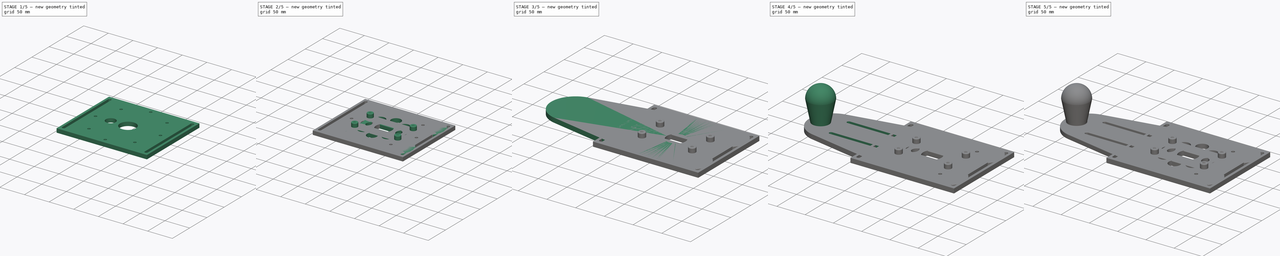
[diagram: build sequence overview — one tinted view per stage of 5, left to right]
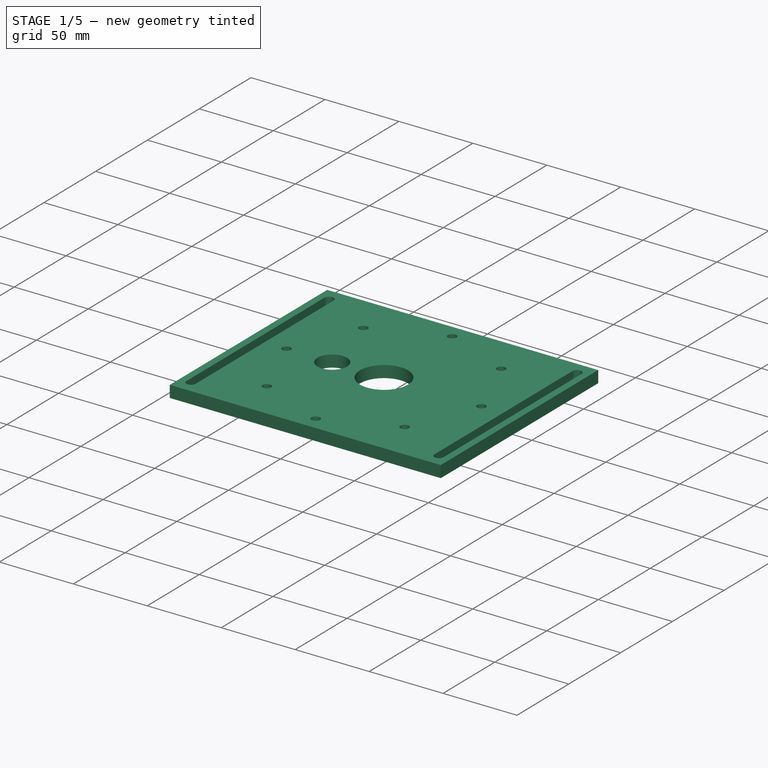
[diagram: stage 1 of 5 — iso view after this stage's code; geometry added in this stage tinted green]
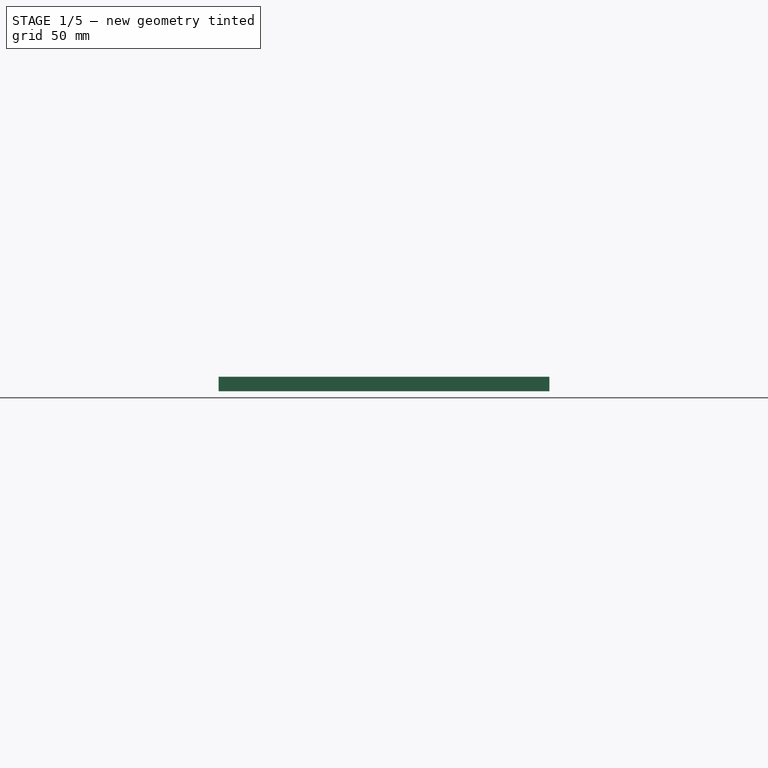
[diagram: stage 1 of 5 — front view after this stage's code; geometry added in this stage tinted green]
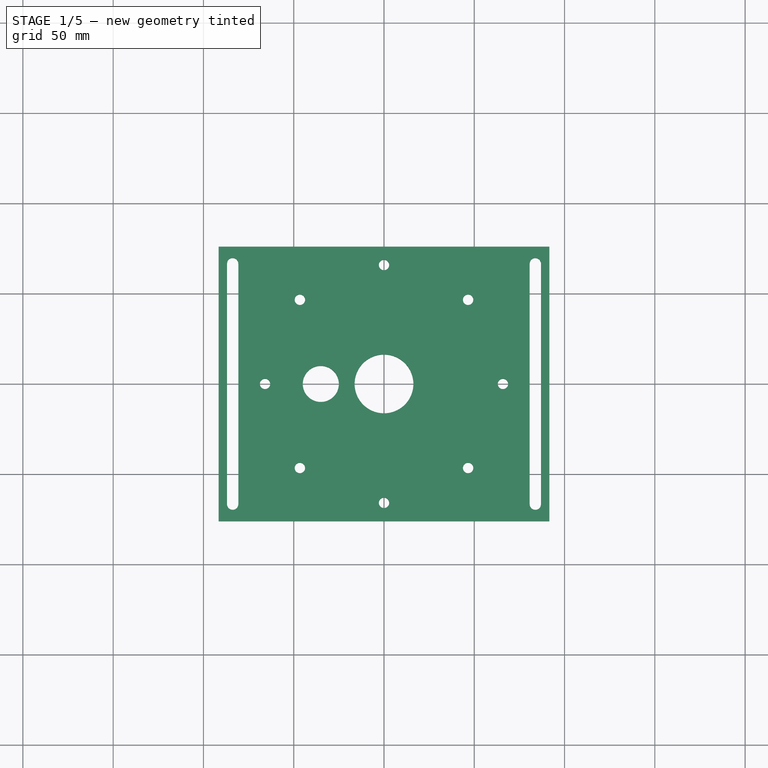
[diagram: stage 1 of 5 — top view after this stage's code; geometry added in this stage tinted green]
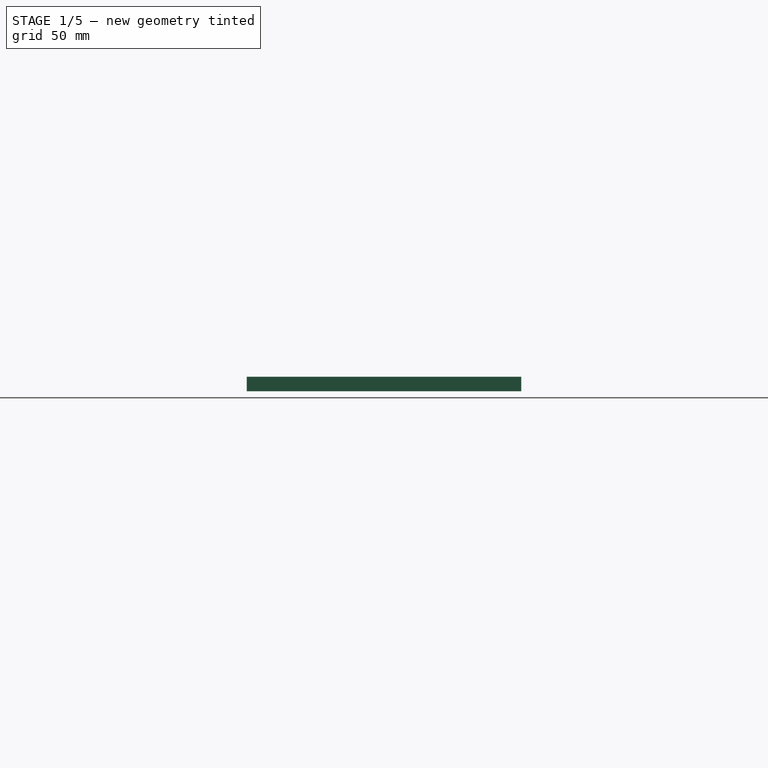
[diagram: stage 1 of 5 — right view after this stage's code; geometry added in this stage tinted green]
FCSTD DOCUMENT  (FreeCAD 2023.131R26244 +5365 (Git))
Label: Dewalt DW6184 Base Plate
License: All rights reserved
LicenseURL: http://en.wikipedia.org/wiki/All_rights_reserved
objects: Sketcher::SketchObject×16, PartDesign::Pocket×10, PartDesign::Pad×5, PartDesign::Body×4, PartDesign::PolarPattern×3, PartDesign::Fillet×2, Spreadsheet::Sheet×1, PartDesign::Revolution×1, PartDesign::Hole×1
note: 102 computed .brp shape members not serialized (recipe doc carries the construction recipe); baked Part::Feature solids carry a one-line shape summary decoded from their .brp

FEATURE [PartDesign::Body] Body003  label="Parallel Fence"
  AutoGroupSolids = false
  ClaimAllChildren = false
  ExportMode = 0
  Group = -> [Sketch015,Pad004,Sketch016,Sketch017,Pad005,Hole001,Fillet002]
  InvalidShape = false
  Origin = -> Origin003
  Tip = -> Fillet002
  TreeRank = 75
  ValidateShape = true
  _ExportChildren = -> [Pad004,Pad005,Hole001,Fillet002]
  _GroupVersion = 1
FEATURE [Sketcher::SketchObject] Sketch018
  ArcFitTolerance = 1e-06
  AttachmentSupport = -> [XY_Plane004]
  ExternalBSplineMaxDegree = 5
  ExternalBSplineTolerance = 0.0001
  FullyConstrained = true
  InternalTolerance = 1e-06
  InvalidShape = false
  MakeInternals = false
  MapMode = 5
  Support = -> [XY_Plane004]
  TreeRank = 12
  ValidateShape = true
  expr: Constraints[0] = <<Parameters>>.inner_hole_diameter
  expr: Constraints[11] = <<Parameters>>.outer_diameter + 5 * <<Parameters>>.fence_slot_width
  expr: Constraints[13] = <<Parameters>>.outer_diameter
  expr: Constraints[28] = <<Parameters>>.fence_slot_width
  expr: Constraints[29] = <<Parameters>>.outer_diameter + 2.5 * <<Parameters>>.fence_slot_width
  expr: Constraints[30] = <<Parameters>>.fence_slot_width * 1.5
  sketch-geometry (14):
    g0: Circle CenterX=0 CenterY=0 CenterZ=0 NormalX=0 NormalY=0 NormalZ=1 AngleXU=0 Radius=16.28
    g1: LineSegment StartX=91.625 StartY=-76 StartZ=0 EndX=91.625 EndY=76 EndZ=0
    g2: LineSegment StartX=91.625 StartY=76 StartZ=0 EndX=-91.625 EndY=76 EndZ=0
    g3: LineSegment StartX=-91.625 StartY=76 StartZ=0 EndX=-91.625 EndY=-76 EndZ=0
    g4: LineSegment StartX=-91.625 StartY=-76 StartZ=0 EndX=91.625 EndY=-76 EndZ=0
    g5: GeomPoint [constr] X=0 Y=0 Z=0
    g6: ArcOfCircle CenterX=-83.8125 CenterY=66.625 CenterZ=0 NormalX=0 NormalY=0 NormalZ=1 AngleXU=0 Radius=3.125 StartAngle=-9e-16 EndAngle=3.14159
    g7: ArcOfCircle CenterX=-83.8125 CenterY=-66.625 CenterZ=0 NormalX=0 NormalY=0 NormalZ=1 AngleXU=0 Radius=3.125 StartAngle=3.14159 EndAngle=6.28319
    g8: LineSegment StartX=-86.9375 StartY=66.625 StartZ=0 EndX=-86.9375 EndY=-66.625 EndZ=0
    g9: LineSegment StartX=-80.6875 StartY=-66.625 StartZ=0 EndX=-80.6875 EndY=66.625 EndZ=0
    g10: ArcOfCircle CenterX=83.8125 CenterY=66.625 CenterZ=0 NormalX=0 NormalY=0 NormalZ=1 AngleXU=0 Radius=3.125 StartAngle=-1.8e-15 EndAngle=3.14159
    g11: ArcOfCircle CenterX=83.8125 CenterY=-66.625 CenterZ=0 NormalX=0 NormalY=0 NormalZ=1 AngleXU=0 Radius=3.125 StartAngle=3.14159 EndAngle=6.28319
    g12: LineSegment StartX=80.6875 StartY=66.625 StartZ=0 EndX=80.6875 EndY=-66.625 EndZ=0
    g13: LineSegment StartX=86.9375 StartY=-66.625 StartZ=0 EndX=86.9375 EndY=66.625 EndZ=0
  constraints (31):
    c: Diameter(g0) = 32.56
    c: Coincident(g1,g2)
    c: Coincident(g2,g3)
    c: Coincident(g3,g4)
    c: Coincident(g4,g1)
    c: Horizontal(g2)
    c: Horizontal(g4)
    c: Vertical(g1)
    c: Vertical(g3)
    c: Symmetric(g2,g1,g5)
    c: Coincident(g5,g0)
    c: DistanceX(g2,g1) = 183.25
    c: Coincident(g0,g-1)
    c: DistanceY(g1,g1) = 152
    c: Tangent(g6,g8) = -1.5708
    c: Tangent(g8,g7) = -1.5708
    c: Tangent(g7,g9) = -1.5708
    c: Tangent(g9,g6) = -1.5708
    c: Equal(g6,g7)
    c: Tangent(g10,g12) = -1.5708
    c: Tangent(g12,g11) = -1.5708
    c: Tangent(g11,g13) = -1.5708
    c: Tangent(g13,g10) = -1.5708
    c: Equal(g10,g11)
    c: Symmetric(g6,g7,g-1)
    c: Symmetric(g11,g10,g-1)
    c: Symmetric(g10,g6,g-2)
    c: Equal(g6,g10)
    c: DistanceX(g6,g6) = 6.25
    c: DistanceX(g6,g10) = 167.625
    c: DistanceY(g6,g2) = 9.375
FEATURE [PartDesign::Pad] Pad006
  AddSubType = 0
  AlongSketchNormal = false
  AutoTaperInnerAngle = true
  CheckUpToFaceLimits = true
  ClaimChildren = false
  Direction = (0,0,1)
  Fit = 0
  FitJoin = 0
  InnerFit = 0
  InnerFitJoin = 0
  InvalidShape = false
  Length = 8
  Length2 = 100
  Linearize = true
  NewSolid = false
  Profile = -> Sketch018
  Suppress = false
  TaperInnerAngle = 0
  TaperInnerAngleRev = 0
  TreeRank = 13
  Type = 0
  ValidateShape = true
  _ProfileBasedVersion = 1
  expr: Length = <<Parameters>>.thickness
FEATURE [Sketcher::SketchObject] Sketch019
  ArcFitTolerance = 1e-06
  AttachmentSupport = -> [Pad006]
  ExternalBSplineMaxDegree = 5
  ExternalBSplineTolerance = 0.0001
  FullyConstrained = true
  InternalTolerance = 1e-06
  InvalidShape = false
  MakeInternals = false
  MapMode = 5
  Placement = pos=(0,0,8) rot=(0,0,1;0rad)
  Support = -> [Pad006]
  TreeRank = 85
  ValidateShape = true
  expr: Constraints[11] = <<Parameters>>.hole_spacing
  expr: Constraints[19] = <<Parameters>>.screw_hole_diameter
  expr: Constraints[29] = <<Parameters>>.hole_spacing
  expr: Constraints[30] = <<Parameters>>.hole_spacing
  sketch-geometry (18):
    g0: LineSegment [constr] StartX=46.5851 StartY=-46.5851 StartZ=0 EndX=46.5851 EndY=46.5851 EndZ=0
    g1: LineSegment [constr] StartX=46.5851 StartY=46.5851 StartZ=0 EndX=-46.5851 EndY=46.5851 EndZ=0
    g2: LineSegment [constr] StartX=-46.5851 StartY=46.5851 StartZ=0 EndX=-46.5851 EndY=-46.5851 EndZ=0
    g3: LineSegment [constr] StartX=-46.5851 StartY=-46.5851 StartZ=0 EndX=46.5851 EndY=-46.5851 EndZ=0
    g4: GeomPoint [constr] X=0 Y=0 Z=0
    g5: Circle CenterX=-46.5851 CenterY=46.5851 CenterZ=0 NormalX=0 NormalY=0 NormalZ=1 AngleXU=0 Radius=2.875
    g6: Circle CenterX=-46.5851 CenterY=-46.5851 CenterZ=0 NormalX=0 NormalY=0 NormalZ=1 AngleXU=0 Radius=2.875
    g7: Circle CenterX=46.5851 CenterY=46.5851 CenterZ=0 NormalX=0 NormalY=0 NormalZ=1 AngleXU=0 Radius=2.875
    g8: Circle CenterX=46.5851 CenterY=-46.5851 CenterZ=0 NormalX=0 NormalY=0 NormalZ=1 AngleXU=0 Radius=2.875
    g9: LineSegment [constr] StartX=-65.8812 StartY=0 StartZ=0 EndX=0 EndY=65.8812 EndZ=0
    g10: LineSegment [constr] StartX=0 StartY=65.8812 StartZ=0 EndX=65.8812 EndY=0 EndZ=0
    g11: LineSegment [constr] StartX=65.8812 StartY=0 StartZ=0 EndX=0 EndY=-65.8812 EndZ=0
    g12: LineSegment [constr] StartX=0 StartY=-65.8812 StartZ=0 EndX=-65.8812 EndY=0 EndZ=0
    g13: GeomPoint [constr] X=0 Y=0 Z=0
    g14: Circle CenterX=-65.8812 CenterY=0 CenterZ=0 NormalX=0 NormalY=0 NormalZ=1 AngleXU=0 Radius=2.875
    g15: Circle CenterX=0 CenterY=-65.8812 CenterZ=0 NormalX=0 NormalY=0 NormalZ=1 AngleXU=0 Radius=2.875
    g16: Circle CenterX=65.8812 CenterY=0 CenterZ=0 NormalX=0 NormalY=0 NormalZ=1 AngleXU=0 Radius=2.875
    g17: Circle CenterX=0 CenterY=65.8812 CenterZ=0 NormalX=0 NormalY=0 NormalZ=1 AngleXU=0 Radius=2.875
  constraints (39):
    c: Coincident(g0,g1)
    c: Coincident(g1,g2)
    c: Coincident(g2,g3)
    c: Coincident(g3,g0)
    c: Horizontal(g1)
    c: Horizontal(g3)
    c: Vertical(g0)
    c: Vertical(g2)
    c: Symmetric(g1,g0,g4)
    c: Coincident(g4,g-1)
    c: Equal(g1,g2)
    c: Distance(g1,g0) = 131.762
    c: Coincident(g5,g1)
    c: Coincident(g6,g2)
    c: Coincident(g7,g0)
    c: Coincident(g8,g0)
    c: Equal(g5,g7)
    c: Equal(g5,g6)
    c: Equal(g5,g8)
    c: Diameter(g5) = 5.75
    c: Coincident(g9,g10)
    c: Coincident(g10,g11)
    c: Coincident(g11,g12)
    c: Coincident(g12,g9)
    c: Symmetric(g10,g9,g13)
    c: Coincident(g13,g4)
    c: PointOnObject(g9,g-1)
    c: PointOnObject(g9,g-2)
    c: Symmetric(g9,g11,g4)
    c: DistanceX(g9,g10) = 131.762
    c: DistanceY(g11,g9) = 131.762
    c: Coincident(g14,g9)
    c: Coincident(g15,g11)
    c: Coincident(g16,g10)
    c: Coincident(g17,g9)
    c: Equal(g5,g17)
    c: Equal(g5,g16)
    c: Equal(g5,g14)
    c: Equal(g5,g15)
FEATURE [PartDesign::Pocket] Pocket007
  AddSubType = 1
  AutoTaperInnerAngle = true
  BaseFeature = -> Pad006
  CheckUpToFaceLimits = true
  ClaimChildren = false
  Fit = 0
  FitJoin = 0
  InnerFit = 0
  InnerFitJoin = 0
  InvalidShape = false
  Length = 100
  Length2 = 100
  Linearize = true
  NewSolid = false
  Profile = -> Sketch019
  Suppress = false
  TaperInnerAngle = 0
  TaperInnerAngleRev = 0
  TreeRank = 86
  Type = 4
  ValidateShape = true
  _ProfileBasedVersion = 1
  _Version = 1
FEATURE [Sketcher::SketchObject] Sketch020
  ArcFitTolerance = 1e-06
  AttachmentSupport = -> [Pocket007]
  ExternalBSplineMaxDegree = 5
  ExternalBSplineTolerance = 0.0001
  FullyConstrained = true
  InternalTolerance = 1e-06
  InvalidShape = false
  MakeInternals = false
  MapMode = 5
  Placement = pos=(0,0,0) rot=(1,0,0;3.14159rad)
  Support = -> [Pocket007]
  TreeRank = 87
  ValidateShape = true
  expr: Constraints[11] = <<Parameters>>.hole_spacing
  expr: Constraints[19] = <<Parameters>>.relief_hole_diameter
  sketch-geometry (9):
    g0: LineSegment [constr] StartX=46.5851 StartY=-46.5851 StartZ=0 EndX=46.5851 EndY=46.5851 EndZ=0
    g1: LineSegment [constr] StartX=46.5851 StartY=46.5851 StartZ=0 EndX=-46.5851 EndY=46.5851 EndZ=0
    g2: LineSegment [constr] StartX=-46.5851 StartY=46.5851 StartZ=0 EndX=-46.5851 EndY=-46.5851 EndZ=0
    g3: LineSegment [constr] StartX=-46.5851 StartY=-46.5851 StartZ=0 EndX=46.5851 EndY=-46.5851 EndZ=0
    g4: GeomPoint [constr] X=0 Y=0 Z=0
    g5: Circle CenterX=-46.5851 CenterY=46.5851 CenterZ=0 NormalX=0 NormalY=0 NormalZ=1 AngleXU=0 Radius=5
    g6: Circle CenterX=46.5851 CenterY=46.5851 CenterZ=0 NormalX=0 NormalY=0 NormalZ=1 AngleXU=0 Radius=5
    g7: Circle CenterX=46.5851 CenterY=-46.5851 CenterZ=0 NormalX=0 NormalY=0 NormalZ=1 AngleXU=0 Radius=5
    g8: Circle CenterX=-46.5851 CenterY=-46.5851 CenterZ=0 NormalX=0 NormalY=0 NormalZ=1 AngleXU=0 Radius=5
  constraints (20):
    c: Coincident(g0,g1)
    c: Coincident(g1,g2)
    c: Coincident(g2,g3)
    c: Coincident(g3,g0)
    c: Horizontal(g1)
    c: Horizontal(g3)
    c: Vertical(g0)
    c: Vertical(g2)
    c: Symmetric(g1,g0,g4)
    c: Coincident(g4,g-1)
    c: Equal(g1,g2)
    c: Distance(g1,g0) = 131.762
    c: Coincident(g5,g1)
    c: Coincident(g6,g0)
    c: Coincident(g7,g0)
    c: Coincident(g8,g2)
    c: Equal(g5,g6)
    c: Equal(g5,g8)
    c: Equal(g5,g7)
    c: Diameter(g5) = 10
FEATURE [PartDesign::Pocket] Pocket008
  AddSubType = 1
  AutoTaperInnerAngle = true
  BaseFeature = -> Pocket007
  CheckUpToFaceLimits = true
  ClaimChildren = false
  Fit = 0
  FitJoin = 0
  InnerFit = 0
  InnerFitJoin = 0
  InvalidShape = false
  Length = 3.1
  Length2 = 100
  Linearize = true
  NewSolid = false
  Profile = -> Sketch020
  Suppress = false
  TaperInnerAngle = 0
  TaperInnerAngleRev = 0
  TreeRank = 88
  Type = 0
  ValidateShape = true
  _ProfileBasedVersion = 1
  _Version = 1
  expr: Length = <<Parameters>>.relief_hole_depth
FEATURE [Sketcher::SketchObject] Sketch021
  ArcFitTolerance = 1e-06
  AttachmentSupport = -> [Pocket008]
  ExternalBSplineMaxDegree = 5
  ExternalBSplineTolerance = 0.0001
  FullyConstrained = true
  InternalTolerance = 1e-06
  InvalidShape = false
  MakeInternals = false
  MapMode = 5
  Placement = pos=(0,0,8) rot=(0,0,1;0rad)
  Support = -> [Pocket008]
  TreeRank = 89
  ValidateShape = true
  expr: Constraints[1] = <<Parameters>>.view_hole_offset
  expr: Constraints[2] = <<Parameters>>.view_hole_diameter
  sketch-geometry (1):
    g0: Circle CenterX=-35 CenterY=0 CenterZ=0 NormalX=0 NormalY=0 NormalZ=1 AngleXU=0 Radius=10
  constraints (3):
    c: PointOnObject(g0,g-1)
    c: DistanceX(g0,g-1) = 35
    c: Diameter(g0) = 20
FEATURE [PartDesign::Pocket] Pocket009
  AddSubType = 1
  AutoTaperInnerAngle = true
  BaseFeature = -> Pocket008
  CheckUpToFaceLimits = true
  ClaimChildren = false
  Fit = 0
  FitJoin = 0
  InnerFit = 0
  InnerFitJoin = 0
  InvalidShape = false
  Length = 100
  Length2 = 100
  Linearize = true
  NewSolid = false
  Profile = -> Sketch021
  Suppress = false
  TaperInnerAngle = 0
  TaperInnerAngleRev = 0
  TreeRank = 90
  Type = 4
  ValidateShape = true
  _ProfileBasedVersion = 1
  _Version = 1
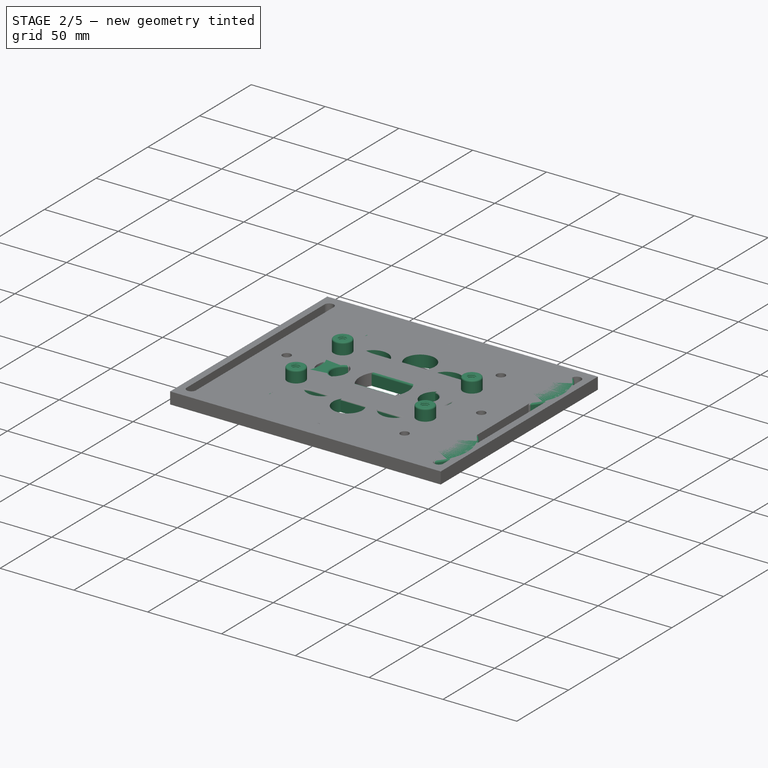
[diagram: stage 2 of 5 — iso view after this stage's code; geometry added in this stage tinted green]
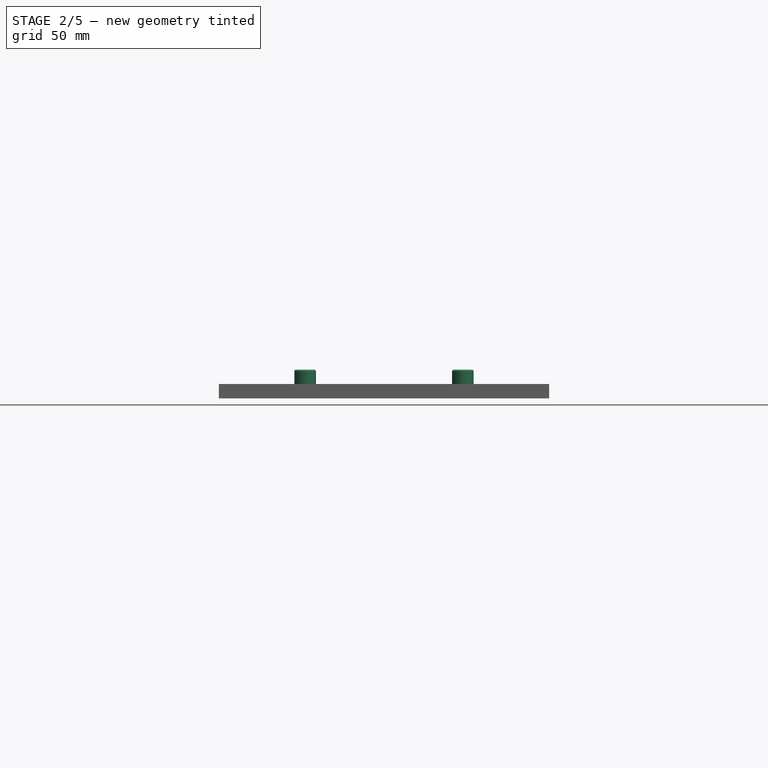
[diagram: stage 2 of 5 — front view after this stage's code; geometry added in this stage tinted green]
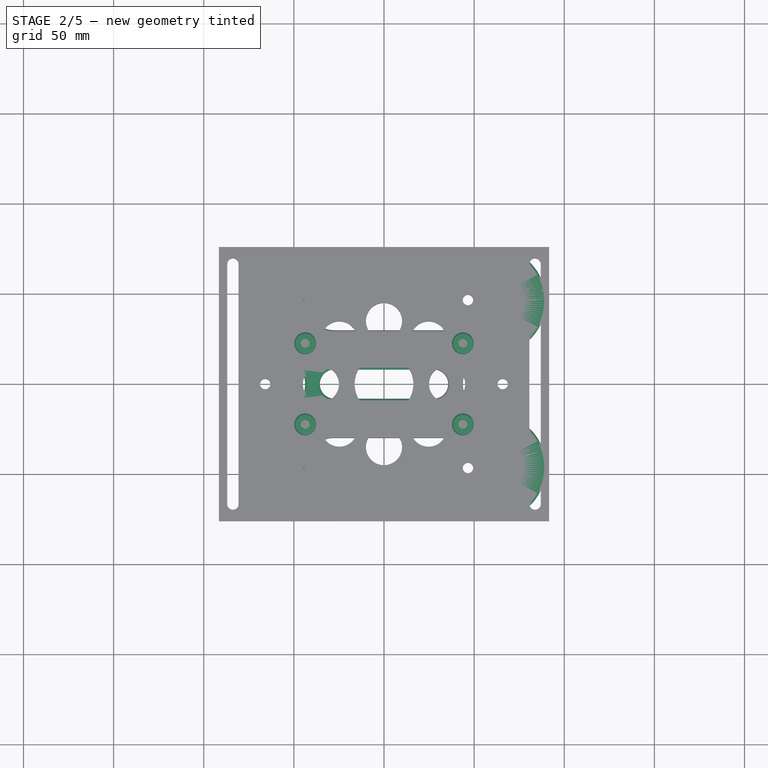
[diagram: stage 2 of 5 — top view after this stage's code; geometry added in this stage tinted green]
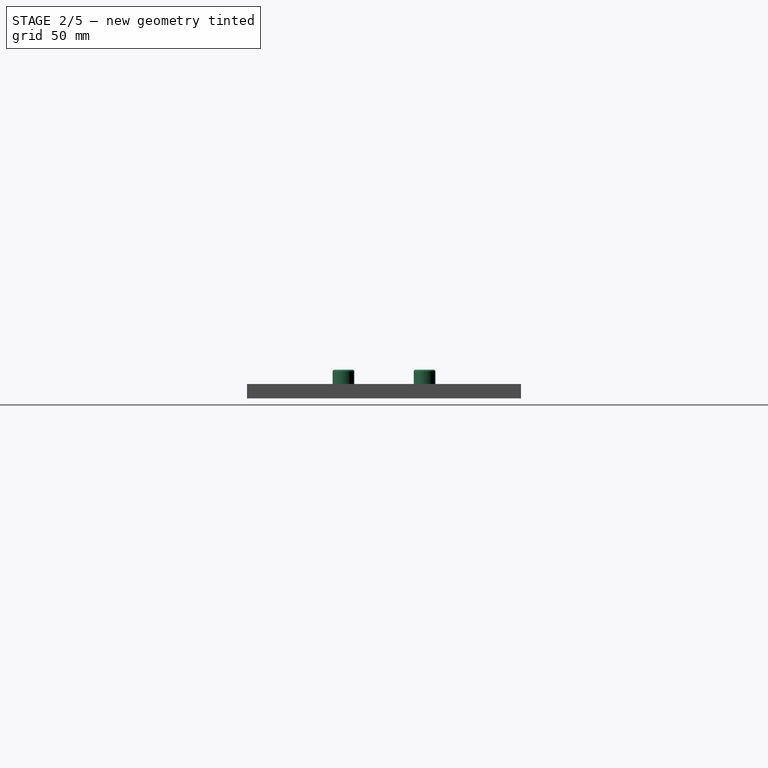
[diagram: stage 2 of 5 — right view after this stage's code; geometry added in this stage tinted green]
FEATURE [PartDesign::Body] Body001  label="Base Plate with Parallel Fence"
  AutoGroupSolids = false
  ClaimAllChildren = false
  ExportMode = 0
  Group = -> [Sketch003,Pad001,Sketch004,Pocket002,Sketch007,Sketch006,Pocket003,Revolution,Sketch008,Pocket004,Pocket006,PolarPattern001,Fillet001]
  InvalidShape = false
  Origin = -> Origin001
  Tip = -> Fillet001
  TreeRank = 18
  ValidateShape = true
  _ExportChildren = -> [Pad001,Pocket002,Pocket003,Revolution,Pocket004,Pocket006,PolarPattern001,Fillet001]
  _GroupVersion = 1
FEATURE [Sketcher::SketchObject] Sketch015
  ArcFitTolerance = 1e-06
  AttachmentSupport = -> [XY_Plane003]
  ExternalBSplineMaxDegree = 5
  ExternalBSplineTolerance = 0.0001
  FullyConstrained = true
  InternalTolerance = 1e-06
  InvalidShape = false
  MakeInternals = false
  MapMode = 5
  Support = -> [XY_Plane003]
  TreeRank = 76
  ValidateShape = true
  expr: Constraints[1] = <<Parameters>>.fence_distance / 2
  expr: Constraints[22] = <<Parameters>>.outer_diameter
  expr: Constraints[45] = <<Parameters>>.inner_hole_diameter / 2
  expr: Constraints[46] = <<Parameters>>.inner_hole_diameter / 2
  expr: Constraints[54] = <<Parameters>>.inner_hole_diameter / 4
  expr: Constraints[8] = <<Parameters>>.inner_hole_diameter
  sketch-geometry (22):
    g0: GeomPoint [constr] X=-43.75 Y=0 Z=0
    g1: GeomPoint [constr] X=43.75 Y=0 Z=0
    g2: ArcOfCircle CenterX=-60.03 CenterY=0 CenterZ=0 NormalX=0 NormalY=0 NormalZ=1 AngleXU=0 Radius=16.28 StartAngle=4.71239 EndAngle=7.85398
    g3: ArcOfCircle CenterX=60.03 CenterY=0 CenterZ=0 NormalX=0 NormalY=0 NormalZ=1 AngleXU=0 Radius=16.28 StartAngle=1.5708 EndAngle=4.71239
    g4: LineSegment StartX=-60.03 StartY=16.28 StartZ=0 EndX=-60.03 EndY=76 EndZ=0
    g5: LineSegment StartX=-60.03 StartY=76 StartZ=0 EndX=60.03 EndY=76 EndZ=0
    g6: LineSegment StartX=-60.03 StartY=-16.28 StartZ=0 EndX=-60.03 EndY=-76 EndZ=0
    g7: LineSegment StartX=-60.03 StartY=-76 StartZ=0 EndX=60.03 EndY=-76 EndZ=0
    g8: ArcOfCircle CenterX=60.03 CenterY=46.14 CenterZ=0 NormalX=0 NormalY=0 NormalZ=1 AngleXU=0 Radius=29.86 StartAngle=4.71239 EndAngle=7.85398
    g9: ArcOfCircle CenterX=60.03 CenterY=-46.14 CenterZ=0 NormalX=0 NormalY=0 NormalZ=1 AngleXU=0 Radius=29.86 StartAngle=4.71239 EndAngle=7.85398
    g10: ArcOfCircle CenterX=-27.47 CenterY=46.14 CenterZ=0 NormalX=0 NormalY=0 NormalZ=1 AngleXU=0 Radius=16.28 StartAngle=1.5708 EndAngle=4.71239
    g11: ArcOfCircle CenterX=60.03 CenterY=46.14 CenterZ=0 NormalX=0 NormalY=0 NormalZ=1 AngleXU=0 Radius=16.28 StartAngle=4.71239 EndAngle=7.85398
    g12: LineSegment StartX=-27.47 StartY=29.86 StartZ=0 EndX=60.03 EndY=29.86 EndZ=0
    g13: LineSegment StartX=60.03 StartY=62.42 StartZ=0 EndX=-27.47 EndY=62.42 EndZ=0
    g14: ArcOfCircle CenterX=-27.47 CenterY=-46.14 CenterZ=0 NormalX=0 NormalY=0 NormalZ=1 AngleXU=0 Radius=16.28 StartAngle=1.5708 EndAngle=4.71239
    g15: ArcOfCircle CenterX=60.03 CenterY=-46.14 CenterZ=0 NormalX=0 NormalY=0 NormalZ=1 AngleXU=0 Radius=16.28 StartAngle=4.71239 EndAngle=7.85398
    g16: LineSegment StartX=-27.47 StartY=-62.42 StartZ=0 EndX=60.03 EndY=-62.42 EndZ=0
    g17: LineSegment StartX=60.03 StartY=-29.86 StartZ=0 EndX=-27.47 EndY=-29.86 EndZ=0
    g18: ArcOfCircle CenterX=-27.47 CenterY=0 CenterZ=0 NormalX=0 NormalY=0 NormalZ=1 AngleXU=0 Radius=8.14 StartAngle=1.5708 EndAngle=4.71239
    g19: ArcOfCircle CenterX=27.47 CenterY=0 CenterZ=0 NormalX=0 NormalY=0 NormalZ=1 AngleXU=0 Radius=8.14 StartAngle=4.71239 EndAngle=7.85398
    g20: LineSegment StartX=-27.47 StartY=-8.14 StartZ=0 EndX=27.47 EndY=-8.14 EndZ=0
    g21: LineSegment StartX=27.47 StartY=8.14 StartZ=0 EndX=-27.47 EndY=8.14 EndZ=0
  constraints (56):
    c: PointOnObject(g0,g-1)
    c: DistanceX(g0,g1) = 87.5
    c: Symmetric(g0,g1,g-2)
    c: PointOnObject(g2,g-1)
    c: PointOnObject(g3,g-1)
    c: Equal(g2,g3)
    c: PointOnObject(g0,g2)
    c: PointOnObject(g1,g3)
    c: Diameter(g2) = 32.56
    c: Vertical(g4)
    c: Coincident(g5,g4)
    c: Horizontal(g5)
    c: Vertical(g6)
    c: Coincident(g7,g6)
    c: Horizontal(g7)
    c: Equal(g4,g6)
    c: Equal(g7,g5)
    c: DistanceX(g4,g6) = 0
    c: DistanceX(g2,g4) = 0
    c: Equal(g8,g9)
    c: DistanceX(g8,g3) = 0
    c: DistanceX(g5,g8) = 0
    c: DistanceY(g6,g4) = 152
    c: Coincident(g2,g4)
    c: Coincident(g2,g6)
    c: Coincident(g8,g5)
    c: Tangent(g8,g3) = 1.5708
    c: Tangent(g9,g3) = 1.5708
    c: Coincident(g9,g7)
    c: Tangent(g10,g12) = -1.5708
    c: Tangent(g12,g11) = -1.5708
    c: Tangent(g11,g13) = -1.5708
    c: Tangent(g13,g10) = -1.5708
    c: Equal(g10,g11)
    c: Tangent(g14,g16) = -1.5708
    c: Tangent(g16,g15) = -1.5708
    c: Tangent(g15,g17) = -1.5708
    c: Tangent(g17,g14) = -1.5708
    c: Equal(g14,g15)
    c: Equal(g13,g17)
    c: Equal(g10,g14)
    c: Horizontal(g17)
    c: Horizontal(g12)
    c: Symmetric(g11,g15,g-1)
    c: Coincident(g15,g9)
    c: Radius(g15) = 16.28
    c: DistanceX(g0,g14) = 16.28
    c: Tangent(g18,g20) = -1.5708
    c: Tangent(g20,g19) = -1.5708
    c: Tangent(g19,g21) = -1.5708
    c: Tangent(g21,g18) = -1.5708
    c: Equal(g18,g19)
    c: PointOnObject(g18,g-1)
    c: Symmetric(g19,g18,g-2)
    c: Radius(g18) = 8.14
    c: DistanceX(g18,g14) = 0
FEATURE [PartDesign::Pad] Pad004
  AddSubType = 0
  AlongSketchNormal = false
  AutoTaperInnerAngle = true
  CheckUpToFaceLimits = true
  ClaimChildren = false
  Direction = (0,0,1)
  Fit = 0
  FitJoin = 0
  InnerFit = 0
  InnerFitJoin = 0
  InvalidShape = false
  Length = 8
  Length2 = 100
  Linearize = true
  NewSolid = false
  Profile = -> Sketch015
  Suppress = false
  TaperInnerAngle = 0
  TaperInnerAngleRev = 0
  TreeRank = 77
  Type = 0
  ValidateShape = true
  _ProfileBasedVersion = 1
  expr: Length = <<Parameters>>.thickness
FEATURE [Sketcher::SketchObject] Sketch016
  ArcFitTolerance = 1e-06
  AttachmentSupport = -> [Pad004]
  ExternalBSplineMaxDegree = 5
  ExternalBSplineTolerance = 0.0001
  FullyConstrained = true
  InternalTolerance = 1e-06
  InvalidShape = false
  MakeInternals = false
  MapMode = 5
  Placement = pos=(0,0,8) rot=(0,0,1;0rad)
  Support = -> [Pad004]
  TreeRank = 78
  ValidateShape = true
  expr: Constraints[5] = <<Parameters>>.fence_distance / 2
  expr: Constraints[6] = <<Parameters>>.fence_slot_distance
  sketch-geometry (4):
    g0: Circle CenterX=-43.75 CenterY=22.5 CenterZ=0 NormalX=0 NormalY=0 NormalZ=1 AngleXU=0 Radius=6
    g1: Circle CenterX=-43.75 CenterY=-22.5 CenterZ=0 NormalX=0 NormalY=0 NormalZ=1 AngleXU=0 Radius=6
    g2: Circle CenterX=43.75 CenterY=22.5 CenterZ=0 NormalX=0 NormalY=0 NormalZ=1 AngleXU=0 Radius=6
    g3: Circle CenterX=43.75 CenterY=-22.5 CenterZ=0 NormalX=0 NormalY=0 NormalZ=1 AngleXU=0 Radius=6
  constraints (9):
    c: Equal(g0,g2)
    c: Equal(g0,g1)
    c: Equal(g0,g3)
    c: Symmetric(g0,g2,g-2)
    c: Symmetric(g1,g3,g-2)
    c: DistanceX(g0,g2) = 87.5
    c: DistanceY(g1,g0) = 45
    c: Diameter(g0) = 12
    c: Symmetric(g0,g1,g-1)
FEATURE [Sketcher::SketchObject] Sketch017
  ArcFitTolerance = 1e-06
  ExternalBSplineMaxDegree = 5
  ExternalBSplineTolerance = 0.0001
  FullyConstrained = false
  InternalTolerance = 1e-06
  InvalidShape = false
  MakeInternals = false
  MapMode = 5
  Placement = pos=(0,0,16) rot=(0,0,1;0rad)
  TreeRank = 80
  ValidateShape = true
  expr: Constraints[5] = <<Parameters>>.fence_distance / 2
  expr: Constraints[6] = <<Parameters>>.fence_slot_distance
  sketch-geometry (4):
    g0: Circle CenterX=-43.75 CenterY=22.5 CenterZ=0 NormalX=0 NormalY=0 NormalZ=1 AngleXU=0 Radius=5.41837
    g1: Circle CenterX=-43.75 CenterY=-22.5 CenterZ=0 NormalX=0 NormalY=0 NormalZ=1 AngleXU=0 Radius=5.41837
    g2: Circle CenterX=43.75 CenterY=22.5 CenterZ=0 NormalX=0 NormalY=0 NormalZ=1 AngleXU=0 Radius=5.41837
    g3: Circle CenterX=43.75 CenterY=-22.5 CenterZ=0 NormalX=0 NormalY=0 NormalZ=1 AngleXU=0 Radius=5.41837
  constraints (8):
    c: Equal(g0,g2)
    c: Equal(g0,g3)
    c: Equal(g0,g1)
    c: Symmetric(g0,g2,g-2)
    c: Symmetric(g1,g3,g-2)
    c: DistanceX(g0,g2) = 87.5
    c: DistanceY(g3,g2) = 45
    c: Symmetric(g0,g1,g-1)
FEATURE [PartDesign::Pad] Pad005
  AddSubType = 0
  AlongSketchNormal = false
  AutoTaperInnerAngle = true
  BaseFeature = -> Pad004
  CheckUpToFaceLimits = true
  ClaimChildren = false
  Direction = (0,0,1)
  Fit = 0
  FitJoin = 0
  InnerFit = 0
  InnerFitJoin = 0
  InvalidShape = false
  Length = 8
  Length2 = 100
  Linearize = true
  NewSolid = false
  Profile = -> Sketch016
  Suppress = false
  TaperInnerAngle = 0
  TaperInnerAngleRev = 0
  TreeRank = 81
  Type = 0
  ValidateShape = true
  _ProfileBasedVersion = 1
  expr: Length = <<Parameters>>.thickness
FEATURE [PartDesign::Hole] Hole001
  AddSubType = 1
  BaseFeature = -> Pad005
  ClaimChildren = false
  CustomThreadClearance = 0
  Depth = 16
  DepthType = 0
  Diameter = 5.026
  DrillForDepth = false
  DrillPoint = 0
  DrillPointAngle = 118
  Fit = 0
  FitJoin = 0
  HoleCutCountersinkAngle = 90
  HoleCutCustomValues = false
  HoleCutDepth = 0
  HoleCutDiameter = 6.1
  HoleCutType = 0
  InnerFit = 0
  InnerFitJoin = 0
  InvalidShape = false
  Linearize = true
  ModelThread = true
  NewSolid = false
  Profile = -> Sketch017
  Suppress = false
  Tapered = false
  TaperedAngle = 90
  ThreadClass = 0
  ThreadDepth = 16
  ThreadDepthType = 0
  ThreadDirection = 0
  ThreadFit = 0
  ThreadSize = 14
  ThreadType = 1
  Threaded = true
  TreeRank = 82
  UseCustomThreadClearance = false
  ValidateShape = true
  _ProfileBasedVersion = 1
  expr: Depth = <<Parameters>>.thickness * 2
FEATURE [PartDesign::Fillet] Fillet002
  AddSubType = 0
  Base = -> Hole001 [Edge32,Edge34,Edge40,Edge39,Edge41,Edge38,Edge7,Edge36,Edge35,Edge33,Edge10,Edge4,Edge45,Edge46,Edge47,Edge44,Edge51,Edge49,Edge50,Edge52,Edge96,Edge94,Edge98,Edge100]
  BaseFeature = -> Hole001
  InvalidShape = false
  NewSolid = false
  Radius = 1
  SupportTransform = false
  Suppress = false
  TreeRank = 83
  ValidateShape = true
FEATURE [PartDesign::PolarPattern] PolarPattern002
  AddSubType = 0
  Angle = 360
  Axis = -> Sketch021 [N_Axis]
  BaseFeature = -> Pocket009
  CopyShape = false
  InvalidShape = false
  NewSolid = false
  Occurrences = 8
  OriginalSubs = -> [Pocket009]
  Originals = -> [Pocket009]
  ParallelTransform = true
  SubTransform = true
  Suppress = false
  TreeRank = 91
  ValidateShape = true
  _Version = 3
  expr: Occurrences = <<Parameters>>.view_hole_count
FEATURE [PartDesign::Body] Body004  label="Square Base Plate"
  AutoGroupSolids = false
  ClaimAllChildren = false
  ExportMode = 0
  Group = -> [Sketch018,Pad006,Sketch019,Pocket007,Sketch020,Pocket008,Sketch021,Pocket009,PolarPattern002]
  InvalidShape = false
  Origin = -> Origin004
  Tip = -> PolarPattern002
  TreeRank = 84
  ValidateShape = true
  _ExportChildren = -> [Pad006,Pocket007,Pocket008,Pocket009,PolarPattern002]
  _GroupVersion = 1
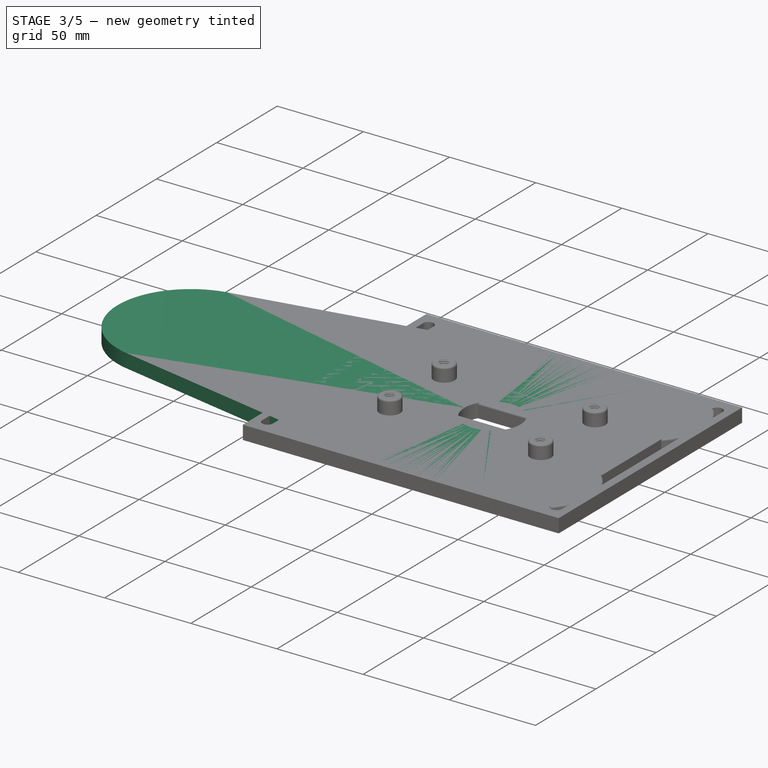
[diagram: stage 3 of 5 — iso view after this stage's code; geometry added in this stage tinted green]
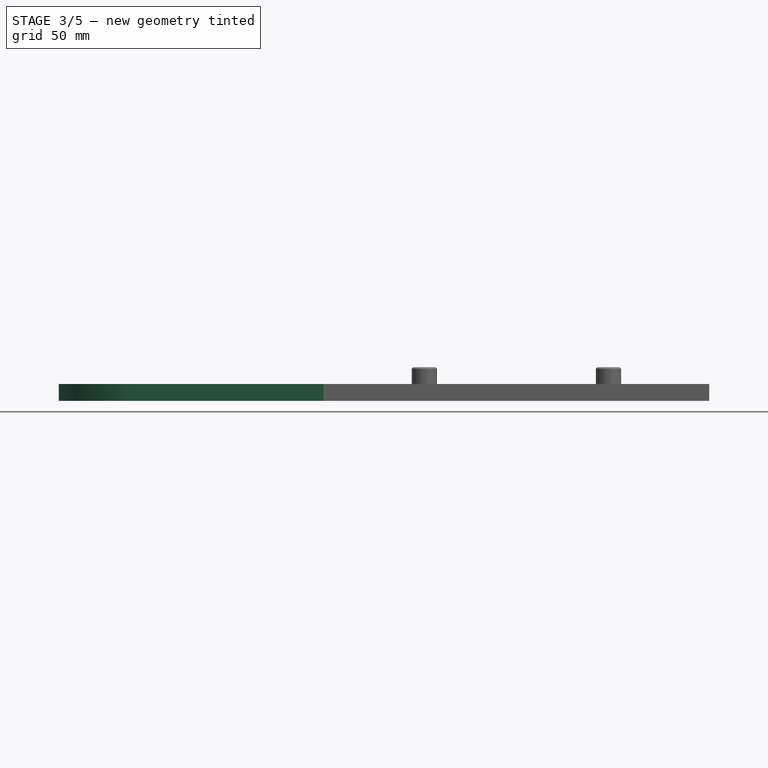
[diagram: stage 3 of 5 — front view after this stage's code; geometry added in this stage tinted green]
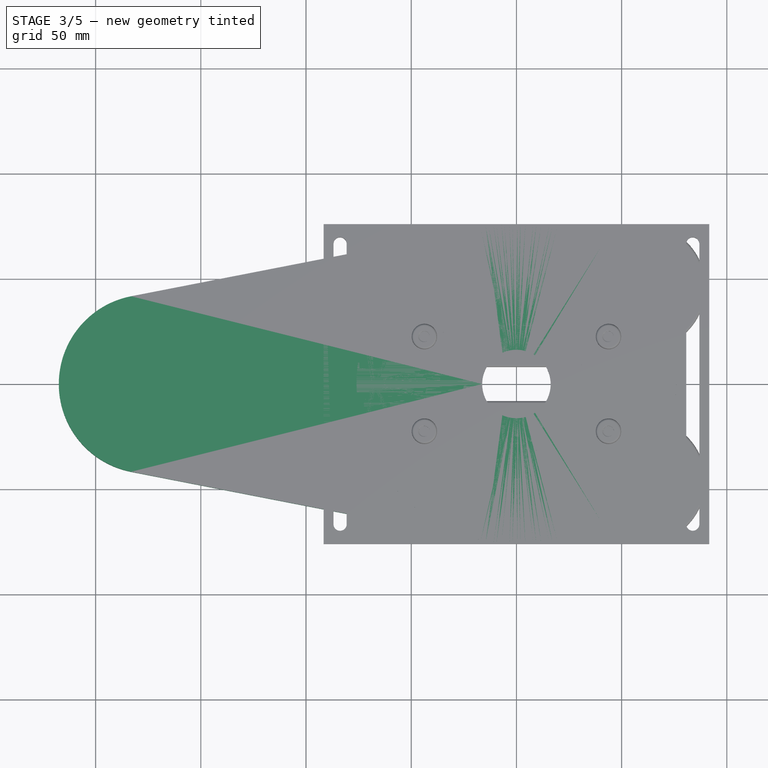
[diagram: stage 3 of 5 — top view after this stage's code; geometry added in this stage tinted green]
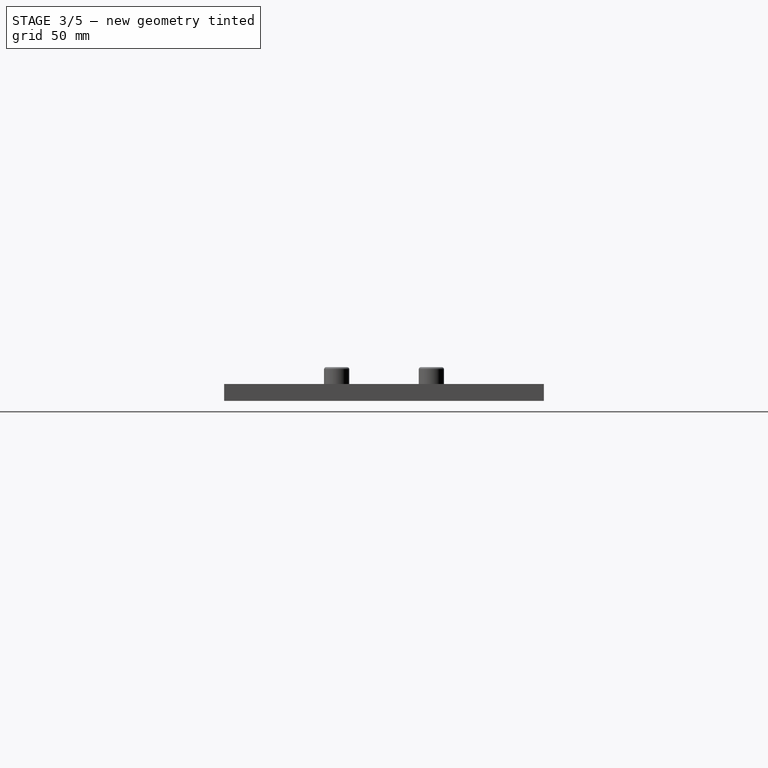
[diagram: stage 3 of 5 — right view after this stage's code; geometry added in this stage tinted green]
FEATURE [Sketcher::SketchObject] Sketch
  ArcFitTolerance = 1e-06
  AttachmentSupport = -> [XY_Plane]
  ExternalBSplineMaxDegree = 5
  ExternalBSplineTolerance = 0.0001
  FullyConstrained = true
  InternalTolerance = 1e-06
  InvalidShape = false
  MakeInternals = false
  MapMode = 5
  Support = -> [XY_Plane]
  TreeRank = 12
  ValidateShape = true
  expr: Constraints[1] = <<Parameters>>.outer_diameter
  expr: Constraints[3] = <<Parameters>>.inner_hole_diameter
  sketch-geometry (2):
    g0: Circle CenterX=0 CenterY=0 CenterZ=0 NormalX=0 NormalY=0 NormalZ=1 AngleXU=0 Radius=76
    g1: Circle CenterX=0 CenterY=0 CenterZ=0 NormalX=0 NormalY=0 NormalZ=1 AngleXU=0 Radius=16.28
  constraints (4):
    c: Coincident(g0,g-1)
    c: Diameter(g0) = 152
    c: Coincident(g1,g0)
    c: Diameter(g1) = 32.56
FEATURE [PartDesign::Pad] Pad
  AddSubType = 0
  AlongSketchNormal = false
  AutoTaperInnerAngle = true
  CheckUpToFaceLimits = true
  ClaimChildren = false
  Direction = (0,0,1)
  Fit = 0
  FitJoin = 0
  InnerFit = 0
  InnerFitJoin = 0
  InvalidShape = false
  Length = 8
  Length2 = 100
  Linearize = true
  NewSolid = false
  Profile = -> Sketch
  Suppress = false
  TaperInnerAngle = 0
  TaperInnerAngleRev = 0
  TreeRank = 13
  Type = 0
  ValidateShape = true
  _ProfileBasedVersion = 1
  expr: Length = <<Parameters>>.thickness
FEATURE [Sketcher::SketchObject] Sketch001
  ArcFitTolerance = 1e-06
  AttachmentSupport = -> [Pad]
  ExternalBSplineMaxDegree = 5
  ExternalBSplineTolerance = 0.0001
  FullyConstrained = true
  InternalTolerance = 1e-06
  InvalidShape = false
  MakeInternals = false
  MapMode = 5
  Placement = pos=(0,0,8) rot=(0,0,1;0rad)
  Support = -> [Pad]
  TreeRank = 14
  ValidateShape = true
  expr: Constraints[10] = <<Parameters>>.hole_spacing
  expr: Constraints[19] = <<Parameters>>.screw_hole_diameter
  sketch-geometry (9):
    g0: LineSegment [constr] StartX=46.5851 StartY=-46.5851 StartZ=0 EndX=46.5851 EndY=46.5851 EndZ=0
    g1: LineSegment [constr] StartX=46.5851 StartY=46.5851 StartZ=0 EndX=-46.5851 EndY=46.5851 EndZ=0
    g2: LineSegment [constr] StartX=-46.5851 StartY=46.5851 StartZ=0 EndX=-46.5851 EndY=-46.5851 EndZ=0
    g3: LineSegment [constr] StartX=-46.5851 StartY=-46.5851 StartZ=0 EndX=46.5851 EndY=-46.5851 EndZ=0
    g4: GeomPoint [constr] X=0 Y=0 Z=0
    g5: Circle CenterX=-46.5851 CenterY=46.5851 CenterZ=0 NormalX=0 NormalY=0 NormalZ=1 AngleXU=0 Radius=2.875
    g6: Circle CenterX=46.5851 CenterY=46.5851 CenterZ=0 NormalX=0 NormalY=0 NormalZ=1 AngleXU=0 Radius=2.875
    g7: Circle CenterX=46.5851 CenterY=-46.5851 CenterZ=0 NormalX=0 NormalY=0 NormalZ=1 AngleXU=0 Radius=2.875
    g8: Circle CenterX=-46.5851 CenterY=-46.5851 CenterZ=0 NormalX=0 NormalY=0 NormalZ=1 AngleXU=0 Radius=2.875
  constraints (20):
    c: Coincident(g0,g1)
    c: Coincident(g1,g2)
    c: Coincident(g2,g3)
    c: Coincident(g3,g0)
    c: Horizontal(g1)
    c: Horizontal(g3)
    c: Vertical(g0)
    c: Vertical(g2)
    c: Symmetric(g1,g0,g4)
    c: Coincident(g4,g-1)
    c: Distance(g1,g0) = 131.762
    c: Equal(g1,g0)
    c: Coincident(g5,g1)
    c: Coincident(g6,g0)
    c: Coincident(g7,g0)
    c: Coincident(g8,g2)
    c: Equal(g5,g6)
    c: Equal(g5,g8)
    c: Equal(g5,g7)
    c: Diameter(g5) = 5.75
FEATURE [PartDesign::Pocket] Pocket
  AddSubType = 1
  AutoTaperInnerAngle = true
  BaseFeature = -> Pad
  CheckUpToFaceLimits = true
  ClaimChildren = false
  Fit = 0
  FitJoin = 0
  InnerFit = 0
  InnerFitJoin = 0
  InvalidShape = false
  Length = 100
  Length2 = 100
  Linearize = true
  NewSolid = false
  Profile = -> Sketch001
  Suppress = false
  TaperInnerAngle = 0
  TaperInnerAngleRev = 0
  TreeRank = 15
  Type = 4
  ValidateShape = true
  _ProfileBasedVersion = 1
  _Version = 1
FEATURE [Spreadsheet::Sheet] Spreadsheet  label="Parameters"
  PythonMode = false
  ShowCells = 0
  TreeRank = 10
  cells = A1=Base Plate Basic Details; A2=Overall Thickness; B2(thickness)=8; A3=Outer Diameter; B3(outer_diameter)=152; A4=Inner Hole Diameter; B4(inner_hole_diameter)=32.56; A5=Diagonal Hole Spacing; B5(hole_spacing)=131.7625; A6=Screw Hole Diameter; B6(screw_hole_diameter)=5.75; A7=Screw Relief Hole Diameter; B7(relief_hole_diameter)=10; A8=Screw Relief Hole Depth; B8(relief_hole_depth)=3.1; A9=View Hole Diameter; B9(view_hole_diameter)=20; A10=View Hole Count; B10(view_hole_count)=8; A11=View Hole Offset; B11(view_hole_offset)=35; A13=Base Plate with Parallel Fence; A14=Outer Diameter; B14(fence_outer_diameter)=85; A15=Distance between Centers; B15(fence_distance)=175; A16=Handle Height; B16(fence_handle_height)=60; A17=Handle Bottom Diameter; B17(fence_handle_bottom_diameter)=30; A18=Handle Top Diameter; B18(fence_handle_top_diameter)=45; A19=Slot Distance; B19(fence_slot_distance)=45; A20=Slot Width; B20(fence_slot_width)=6.25
FEATURE [Sketcher::SketchObject] Sketch002
  ArcFitTolerance = 1e-06
  AttachmentSupport = -> [Pocket]
  ExternalBSplineMaxDegree = 5
  ExternalBSplineTolerance = 0.0001
  FullyConstrained = true
  InternalTolerance = 1e-06
  InvalidShape = false
  MakeInternals = false
  MapMode = 5
  Placement = pos=(0,0,8) rot=(0,0,1;0rad)
  Support = -> [Pocket]
  TreeRank = 16
  ValidateShape = true
  expr: Constraints[11] = <<Parameters>>.hole_spacing
  expr: Constraints[19] = <<Parameters>>.relief_hole_diameter
  sketch-geometry (9):
    g0: LineSegment [constr] StartX=46.5851 StartY=-46.5851 StartZ=0 EndX=46.5851 EndY=46.5851 EndZ=0
    g1: LineSegment [constr] StartX=46.5851 StartY=46.5851 StartZ=0 EndX=-46.5851 EndY=46.5851 EndZ=0
    g2: LineSegment [constr] StartX=-46.5851 StartY=46.5851 StartZ=0 EndX=-46.5851 EndY=-46.5851 EndZ=0
    g3: LineSegment [constr] StartX=-46.5851 StartY=-46.5851 StartZ=0 EndX=46.5851 EndY=-46.5851 EndZ=0
    g4: GeomPoint [constr] X=0 Y=0 Z=0
    g5: Circle CenterX=-46.5851 CenterY=46.5851 CenterZ=0 NormalX=0 NormalY=0 NormalZ=1 AngleXU=0 Radius=5
    g6: Circle CenterX=46.5851 CenterY=46.5851 CenterZ=0 NormalX=0 NormalY=0 NormalZ=1 AngleXU=0 Radius=5
    g7: Circle CenterX=46.5851 CenterY=-46.5851 CenterZ=0 NormalX=0 NormalY=0 NormalZ=1 AngleXU=0 Radius=5
    g8: Circle CenterX=-46.5851 CenterY=-46.5851 CenterZ=0 NormalX=0 NormalY=0 NormalZ=1 AngleXU=0 Radius=5
  constraints (20):
    c: Coincident(g0,g1)
    c: Coincident(g1,g2)
    c: Coincident(g2,g3)
    c: Coincident(g3,g0)
    c: Horizontal(g1)
    c: Horizontal(g3)
    c: Vertical(g0)
    c: Vertical(g2)
    c: Symmetric(g1,g0,g4)
    c: Coincident(g4,g-1)
    c: Equal(g1,g0)
    c: Distance(g1,g0) = 131.762
    c: Coincident(g5,g1)
    c: Coincident(g6,g0)
    c: Coincident(g7,g0)
    c: Coincident(g8,g2)
    c: Equal(g5,g6)
    c: Equal(g5,g7)
    c: Equal(g5,g8)
    c: Diameter(g5) = 10
FEATURE [PartDesign::Pocket] Pocket001
  AddSubType = 1
  AutoTaperInnerAngle = true
  BaseFeature = -> Pocket
  CheckUpToFaceLimits = true
  ClaimChildren = false
  Fit = 0
  FitJoin = 0
  InnerFit = 0
  InnerFitJoin = 0
  InvalidShape = false
  Length = 3.1
  Length2 = 100
  Linearize = true
  NewSolid = false
  Profile = -> Sketch002
  Suppress = false
  TaperInnerAngle = 0
  TaperInnerAngleRev = 0
  TreeRank = 17
  Type = 0
  ValidateShape = true
  _ProfileBasedVersion = 1
  _Version = 1
  expr: Length = <<Parameters>>.relief_hole_depth
FEATURE [Sketcher::SketchObject] Sketch003
  ArcFitTolerance = 1e-06
  AttachmentSupport = -> [XY_Plane001]
  ExternalBSplineMaxDegree = 5
  ExternalBSplineTolerance = 0.0001
  FullyConstrained = true
  InternalTolerance = 1e-06
  InvalidShape = false
  MakeInternals = false
  MapMode = 5
  Support = -> [XY_Plane001]
  TreeRank = 12
  ValidateShape = true
  expr: Constraints[1] = <<Parameters>>.outer_diameter
  expr: Constraints[3] = <<Parameters>>.inner_hole_diameter
  expr: Constraints[5] = <<Parameters>>.fence_outer_diameter
  expr: Constraints[6] = <<Parameters>>.fence_distance
  sketch-geometry (5):
    g0: ArcOfCircle CenterX=0 CenterY=0 CenterZ=0 NormalX=0 NormalY=0 NormalZ=1 AngleXU=0 Radius=76 StartAngle=4.51977 EndAngle=8.0466
    g1: Circle CenterX=0 CenterY=0 CenterZ=0 NormalX=0 NormalY=0 NormalZ=1 AngleXU=0 Radius=16.28
    g2: ArcOfCircle CenterX=-175 CenterY=0 CenterZ=0 NormalX=0 NormalY=0 NormalZ=1 AngleXU=0 Radius=42.5 StartAngle=1.76341 EndAngle=4.51977
    g3: LineSegment StartX=-183.136 StartY=41.714 StartZ=0 EndX=-14.5486 EndY=74.5945 EndZ=0
    g4: LineSegment StartX=-183.136 StartY=-41.714 StartZ=0 EndX=-14.5486 EndY=-74.5945 EndZ=0
  constraints (13):
    c: Coincident(g0,g-1)
    c: Diameter(g0) = 152
    c: Coincident(g1,g0)
    c: Diameter(g1) = 32.56
    c: PointOnObject(g2,g-1)
    c: Diameter(g2) = 85
    c: DistanceX(g2,g0) = 175
    c: Coincident(g4,g2)
    c: Coincident(g4,g0)
    c: Equal(g3,g4)
    c: Tangent(g3,g2) = 1.5708
    c: Tangent(g3,g0) = 1.5708
    c: DistanceX(g2,g2) = 0
FEATURE [PartDesign::Pad] Pad001
  AddSubType = 0
  AlongSketchNormal = false
  AutoTaperInnerAngle = true
  CheckUpToFaceLimits = true
  ClaimChildren = false
  Direction = (0,0,1)
  Fit = 0
  FitJoin = 0
  InnerFit = 0
  InnerFitJoin = 0
  InvalidShape = false
  Length = 8
  Length2 = 100
  Linearize = true
  NewSolid = false
  Profile = -> Sketch003
  Suppress = false
  TaperInnerAngle = 0
  TaperInnerAngleRev = 0
  TreeRank = 13
  Type = 0
  ValidateShape = true
  _ProfileBasedVersion = 1
  expr: Length = <<Parameters>>.thickness
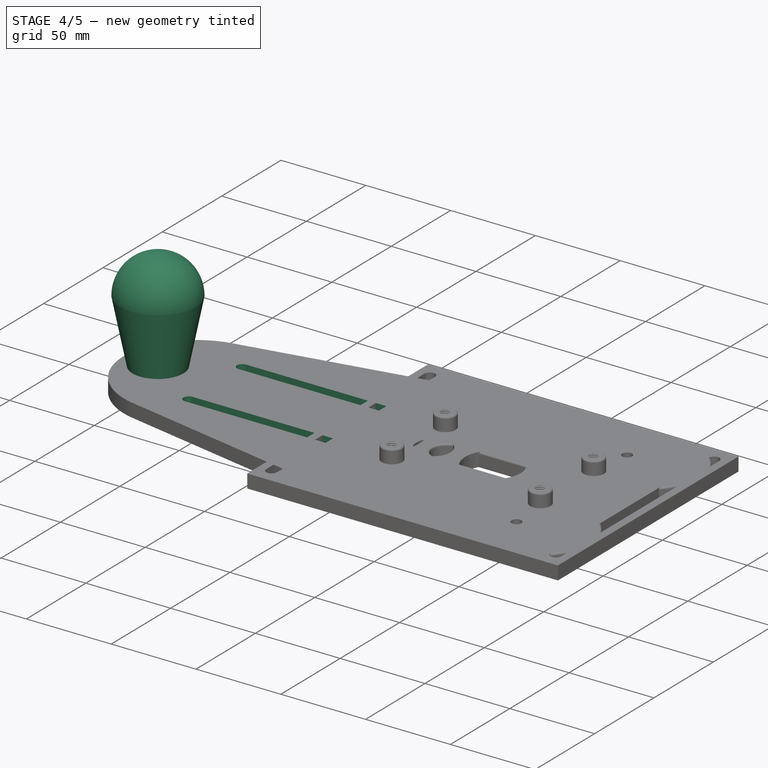
[diagram: stage 4 of 5 — iso view after this stage's code; geometry added in this stage tinted green]
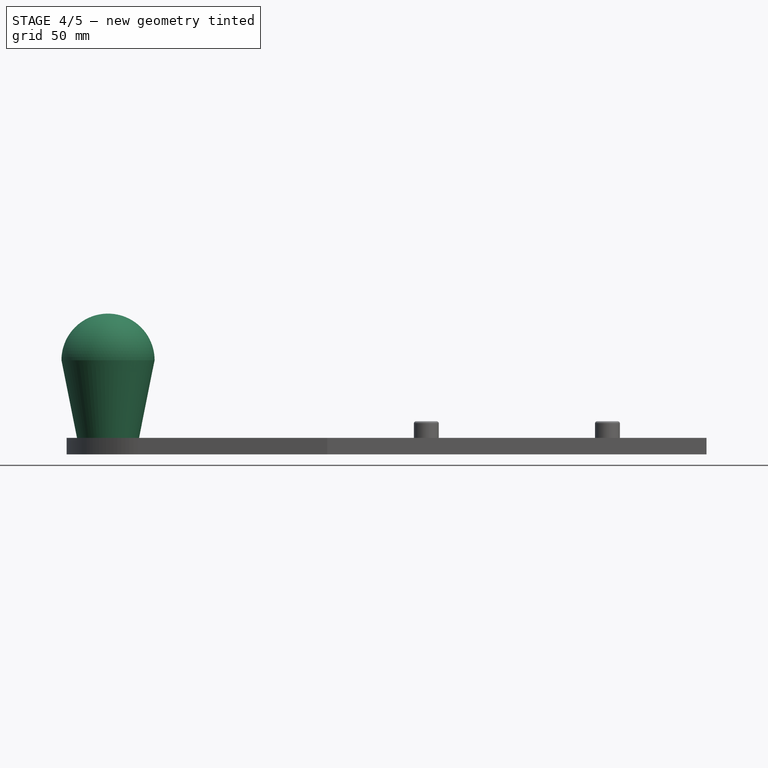
[diagram: stage 4 of 5 — front view after this stage's code; geometry added in this stage tinted green]
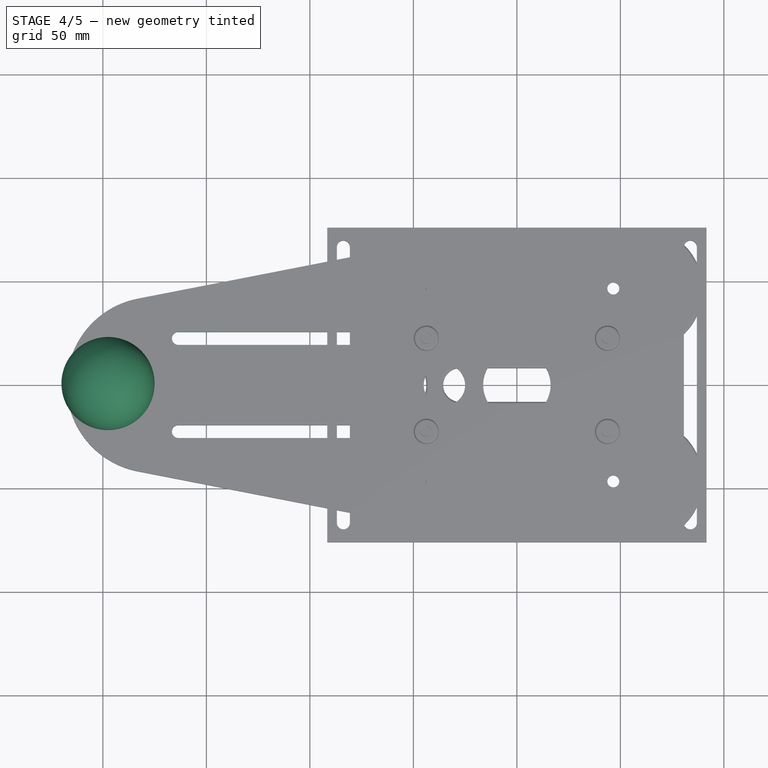
[diagram: stage 4 of 5 — top view after this stage's code; geometry added in this stage tinted green]
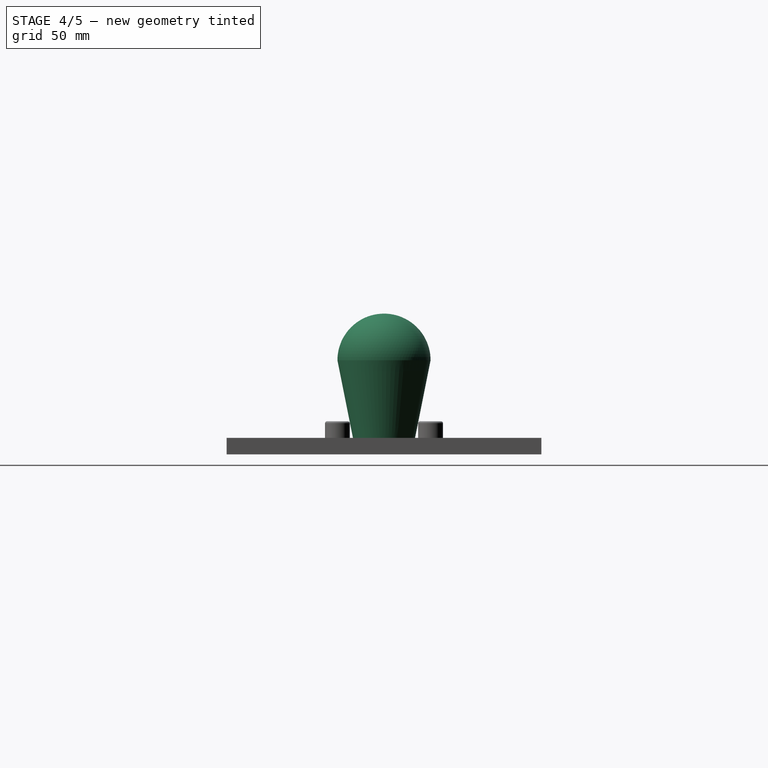
[diagram: stage 4 of 5 — right view after this stage's code; geometry added in this stage tinted green]
FEATURE [Sketcher::SketchObject] Sketch004
  ArcFitTolerance = 1e-06
  AttachmentSupport = -> [Pad001]
  ExternalBSplineMaxDegree = 5
  ExternalBSplineTolerance = 0.0001
  FullyConstrained = true
  InternalTolerance = 1e-06
  InvalidShape = false
  MakeInternals = false
  MapMode = 5
  Placement = pos=(0,0,8) rot=(0,0,1;0rad)
  Support = -> [Pad001]
  TreeRank = 14
  ValidateShape = true
  expr: Constraints[10] = <<Parameters>>.hole_spacing
  expr: Constraints[19] = <<Parameters>>.screw_hole_diameter
  sketch-geometry (9):
    g0: LineSegment [constr] StartX=46.5851 StartY=-46.5851 StartZ=0 EndX=46.5851 EndY=46.5851 EndZ=0
    g1: LineSegment [constr] StartX=46.5851 StartY=46.5851 StartZ=0 EndX=-46.5851 EndY=46.5851 EndZ=0
    g2: LineSegment [constr] StartX=-46.5851 StartY=46.5851 StartZ=0 EndX=-46.5851 EndY=-46.5851 EndZ=0
    g3: LineSegment [constr] StartX=-46.5851 StartY=-46.5851 StartZ=0 EndX=46.5851 EndY=-46.5851 EndZ=0
    g4: GeomPoint [constr] X=0 Y=0 Z=0
    g5: Circle CenterX=-46.5851 CenterY=46.5851 CenterZ=0 NormalX=0 NormalY=0 NormalZ=1 AngleXU=0 Radius=2.875
    g6: Circle CenterX=46.5851 CenterY=46.5851 CenterZ=0 NormalX=0 NormalY=0 NormalZ=1 AngleXU=0 Radius=2.875
    g7: Circle CenterX=46.5851 CenterY=-46.5851 CenterZ=0 NormalX=0 NormalY=0 NormalZ=1 AngleXU=0 Radius=2.875
    g8: Circle CenterX=-46.5851 CenterY=-46.5851 CenterZ=0 NormalX=0 NormalY=0 NormalZ=1 AngleXU=0 Radius=2.875
  constraints (20):
    c: Coincident(g0,g1)
    c: Coincident(g1,g2)
    c: Coincident(g2,g3)
    c: Coincident(g3,g0)
    c: Horizontal(g1)
    c: Horizontal(g3)
    c: Vertical(g0)
    c: Vertical(g2)
    c: Symmetric(g1,g0,g4)
    c: Coincident(g4,g-1)
    c: Distance(g1,g0) = 131.762
    c: Equal(g1,g0)
    c: Coincident(g5,g1)
    c: Coincident(g6,g0)
    c: Coincident(g7,g0)
    c: Coincident(g8,g2)
    c: Equal(g5,g6)
    c: Equal(g5,g8)
    c: Equal(g5,g7)
    c: Diameter(g5) = 5.75
FEATURE [PartDesign::Pocket] Pocket002
  AddSubType = 1
  AutoTaperInnerAngle = true
  BaseFeature = -> Pad001
  CheckUpToFaceLimits = true
  ClaimChildren = false
  Fit = 0
  FitJoin = 0
  InnerFit = 0
  InnerFitJoin = 0
  InvalidShape = false
  Length = 100
  Length2 = 100
  Linearize = true
  NewSolid = false
  Profile = -> Sketch004
  Suppress = false
  TaperInnerAngle = 0
  TaperInnerAngleRev = 0
  TreeRank = 15
  Type = 4
  ValidateShape = true
  _ProfileBasedVersion = 1
  _Version = 1
FEATURE [Sketcher::SketchObject] Sketch006
  ArcFitTolerance = 1e-06
  AttachmentOffset = pos=(-197.5,8,0) rot=(0,0,1;0rad)
  AttachmentSupport = -> [XZ_Plane001]
  ExternalBSplineMaxDegree = 5
  ExternalBSplineTolerance = 0.0001
  FullyConstrained = true
  InternalTolerance = 1e-06
  InvalidShape = false
  MakeInternals = false
  MapMode = 5
  Placement = pos=(-197.5,-1.8e-15,8) rot=(1,0,0;1.5708rad)
  Support = -> [XZ_Plane001]
  TreeRank = 21
  ValidateShape = true
  expr: AttachmentOffset.Base.x = -<<Parameters>>.fence_distance - <<Parameters>>.fence_handle_top_diameter / 2
  expr: AttachmentOffset.Base.y = <<Parameters>>.thickness
  expr: Constraints[4] = <<Parameters>>.fence_handle_bottom_diameter / 2
  expr: Constraints[5] = <<Parameters>>.fence_handle_top_diameter / 2
  expr: Constraints[9] = <<Parameters>>.fence_handle_height
  sketch-geometry (4):
    g0: LineSegment StartX=0 StartY=0 StartZ=0 EndX=-15 EndY=0 EndZ=0
    g1: LineSegment StartX=-15 StartY=0 StartZ=0 EndX=-22.5 EndY=37.5 EndZ=0
    g2: ArcOfCircle CenterX=0 CenterY=37.5 CenterZ=0 NormalX=0 NormalY=0 NormalZ=1 AngleXU=0 Radius=22.5 StartAngle=1.5708 EndAngle=3.14159
    g3: LineSegment StartX=0 StartY=0 StartZ=0 EndX=0 EndY=60 EndZ=0
  constraints (13):
    c: Horizontal(g0)
    c: Coincident(g1,g0)
    c: DistanceX(g0,g-1) = 0
    c: DistanceY(g-1,g0) = 0
    c: DistanceX(g0,g0) = 15
    c: DistanceX(g1,g0) = 22.5
    c: Coincident(g3,g0)
    c: Vertical(g3)
    c: PointOnObject(g2,g3)
    c: DistanceY(g0,g3) = 60
    c: Coincident(g2,g3)
    c: Coincident(g2,g1)
    c: DistanceY(g2,g1) = 0
FEATURE [Sketcher::SketchObject] Sketch007
  ArcFitTolerance = 1e-06
  ExternalBSplineMaxDegree = 5
  ExternalBSplineTolerance = 0.0001
  FullyConstrained = true
  InternalTolerance = 1e-06
  InvalidShape = false
  MakeInternals = false
  MapMode = 5
  Placement = pos=(0,0,5) rot=(0,0,1;0rad)
  TreeRank = 23
  ValidateShape = true
  expr: Constraints[15] = <<Parameters>>.fence_slot_width
  expr: Constraints[16] = <<Parameters>>.fence_slot_distance
  expr: Constraints[17] = <<Parameters>>.outer_diameter / 2
  expr: Constraints[18] = <<Parameters>>.fence_distance / 2
  sketch-geometry (8):
    g0: ArcOfCircle CenterX=-163.5 CenterY=22.5 CenterZ=0 NormalX=0 NormalY=0 NormalZ=1 AngleXU=0 Radius=3.125 StartAngle=1.5708 EndAngle=4.71239
    g1: ArcOfCircle CenterX=-76 CenterY=22.5 CenterZ=0 NormalX=0 NormalY=0 NormalZ=1 AngleXU=0 Radius=3.125 StartAngle=4.71239 EndAngle=7.85398
    g2: LineSegment StartX=-163.5 StartY=19.375 StartZ=0 EndX=-76 EndY=19.375 EndZ=0
    g3: LineSegment StartX=-76 StartY=25.625 StartZ=0 EndX=-163.5 EndY=25.625 EndZ=0
    g4: ArcOfCircle CenterX=-163.5 CenterY=-22.5 CenterZ=0 NormalX=0 NormalY=0 NormalZ=1 AngleXU=0 Radius=3.125 StartAngle=1.5708 EndAngle=4.71239
    g5: ArcOfCircle CenterX=-76 CenterY=-22.5 CenterZ=0 NormalX=0 NormalY=0 NormalZ=1 AngleXU=0 Radius=3.125 StartAngle=4.71239 EndAngle=7.85398
    g6: LineSegment StartX=-163.5 StartY=-25.625 StartZ=0 EndX=-76 EndY=-25.625 EndZ=0
    g7: LineSegment StartX=-76 StartY=-19.375 StartZ=0 EndX=-163.5 EndY=-19.375 EndZ=0
  constraints (19):
    c: Tangent(g0,g2) = -1.5708
    c: Tangent(g2,g1) = -1.5708
    c: Tangent(g1,g3) = -1.5708
    c: Tangent(g3,g0) = -1.5708
    c: Equal(g0,g1)
    c: Tangent(g4,g6) = -1.5708
    c: Tangent(g6,g5) = -1.5708
    c: Tangent(g5,g7) = -1.5708
    c: Tangent(g7,g4) = -1.5708
    c: Equal(g4,g5)
    c: Horizontal(g2)
    c: Horizontal(g6)
    c: Equal(g3,g7)
    c: Equal(g1,g5)
    c: Symmetric(g1,g5,g-1)
    c: DistanceY(g0,g0) = 6.25
    c: DistanceY(g5,g1) = 45
    c: DistanceX(g1,g-1) = 76
    c: DistanceX(g0,g1) = 87.5
FEATURE [PartDesign::Pocket] Pocket003
  AddSubType = 1
  AutoTaperInnerAngle = true
  BaseFeature = -> Pocket002
  CheckUpToFaceLimits = true
  ClaimChildren = false
  Fit = 0
  FitJoin = 0
  InnerFit = 0
  InnerFitJoin = 0
  InvalidShape = false
  Length = 100
  Length2 = 100
  Linearize = true
  NewSolid = false
  Profile = -> Sketch007
  Suppress = false
  TaperInnerAngle = 0
  TaperInnerAngleRev = 0
  TreeRank = 24
  Type = 4
  ValidateShape = true
  _ProfileBasedVersion = 1
  _Version = 1
FEATURE [PartDesign::Revolution] Revolution
  AddSubType = 0
  Angle = 360
  Axis = (0,-2e-16,1)
  Base = (-197.5,-1.8e-15,8)
  BaseFeature = -> Pocket003
  ClaimChildren = false
  Fit = 0
  FitJoin = 0
  InnerFit = 0
  InnerFitJoin = 0
  InvalidShape = false
  Linearize = true
  NewSolid = false
  Profile = -> Sketch006
  ReferenceAxis = -> Sketch006 [V_Axis]
  Suppress = false
  TreeRank = 25
  ValidateShape = true
  _ProfileBasedVersion = 1
FEATURE [Sketcher::SketchObject] Sketch008
  ArcFitTolerance = 1e-06
  AttachmentSupport = -> [Revolution]
  ExternalBSplineMaxDegree = 5
  ExternalBSplineTolerance = 0.0001
  FullyConstrained = true
  InternalTolerance = 1e-06
  InvalidShape = false
  MakeInternals = false
  MapMode = 5
  Placement = pos=(0,0,0) rot=(1,0,0;3.14159rad)
  Support = -> [Revolution]
  TreeRank = 26
  ValidateShape = true
  expr: Constraints[11] = <<Parameters>>.hole_spacing
  expr: Constraints[19] = <<Parameters>>.relief_hole_diameter
  sketch-geometry (9):
    g0: LineSegment [constr] StartX=46.5851 StartY=-46.5851 StartZ=0 EndX=46.5851 EndY=46.5851 EndZ=0
    g1: LineSegment [constr] StartX=46.5851 StartY=46.5851 StartZ=0 EndX=-46.5851 EndY=46.5851 EndZ=0
    g2: LineSegment [constr] StartX=-46.5851 StartY=46.5851 StartZ=0 EndX=-46.5851 EndY=-46.5851 EndZ=0
    g3: LineSegment [constr] StartX=-46.5851 StartY=-46.5851 StartZ=0 EndX=46.5851 EndY=-46.5851 EndZ=0
    g4: GeomPoint [constr] X=0 Y=0 Z=0
    g5: Circle CenterX=-46.5851 CenterY=46.5851 CenterZ=0 NormalX=0 NormalY=0 NormalZ=1 AngleXU=0 Radius=5
    g6: Circle CenterX=46.5851 CenterY=46.5851 CenterZ=0 NormalX=0 NormalY=0 NormalZ=1 AngleXU=0 Radius=5
    g7: Circle CenterX=46.5851 CenterY=-46.5851 CenterZ=0 NormalX=0 NormalY=0 NormalZ=1 AngleXU=0 Radius=5
    g8: Circle CenterX=-46.5851 CenterY=-46.5851 CenterZ=0 NormalX=0 NormalY=0 NormalZ=1 AngleXU=0 Radius=5
  constraints (20):
    c: Coincident(g0,g1)
    c: Coincident(g1,g2)
    c: Coincident(g2,g3)
    c: Coincident(g3,g0)
    c: Horizontal(g1)
    c: Horizontal(g3)
    c: Vertical(g0)
    c: Vertical(g2)
    c: Symmetric(g1,g0,g4)
    c: Coincident(g4,g-1)
    c: Equal(g1,g0)
    c: Distance(g1,g0) = 131.762
    c: Coincident(g5,g1)
    c: Coincident(g6,g0)
    c: Coincident(g7,g0)
    c: Coincident(g8,g2)
    c: Equal(g5,g6)
    c: Equal(g5,g8)
    c: Equal(g5,g7)
    c: Diameter(g5) = 10
FEATURE [PartDesign::Pocket] Pocket004
  AddSubType = 1
  AutoTaperInnerAngle = true
  BaseFeature = -> Revolution
  CheckUpToFaceLimits = true
  ClaimChildren = false
  Fit = 0
  FitJoin = 0
  InnerFit = 0
  InnerFitJoin = 0
  InvalidShape = false
  Length = 3.1
  Length2 = 100
  Linearize = true
  NewSolid = false
  Profile = -> Sketch008
  Suppress = false
  TaperInnerAngle = 0
  TaperInnerAngleRev = 0
  TreeRank = 27
  Type = 0
  ValidateShape = true
  _ProfileBasedVersion = 1
  _Version = 1
  expr: Length = <<Parameters>>.relief_hole_depth
FEATURE [PartDesign::Body] Body  label="Basic Base Plate"
  AutoGroupSolids = false
  ClaimAllChildren = false
  ExportMode = 0
  Group = -> [Sketch,Pad,Sketch001,Pocket,Sketch002,Pocket001,Sketch014,Pocket005,PolarPattern]
  InvalidShape = false
  Origin = -> Origin
  Tip = -> PolarPattern
  TreeRank = 11
  ValidateShape = true
  _ExportChildren = -> [Pad,Pocket,Pocket001,Pocket005,PolarPattern]
  _GroupVersion = 1
FEATURE [PartDesign::Pocket] Pocket006
  AddSubType = 1
  AutoTaperInnerAngle = true
  BaseFeature = -> Pocket004
  CheckUpToFaceLimits = true
  ClaimChildren = false
  Fit = 0
  FitJoin = 0
  InnerFit = 0
  InnerFitJoin = 0
  InvalidShape = false
  Length = 8
  Length2 = 100
  Linearize = true
  NewSolid = false
  Profile = -> Sketch014
  Suppress = false
  TaperInnerAngle = 0
  TaperInnerAngleRev = 0
  TreeRank = 63
  Type = 0
  ValidateShape = true
  _ProfileBasedVersion = 1
  _Version = 1
  expr: Length = <<Parameters>>.thickness
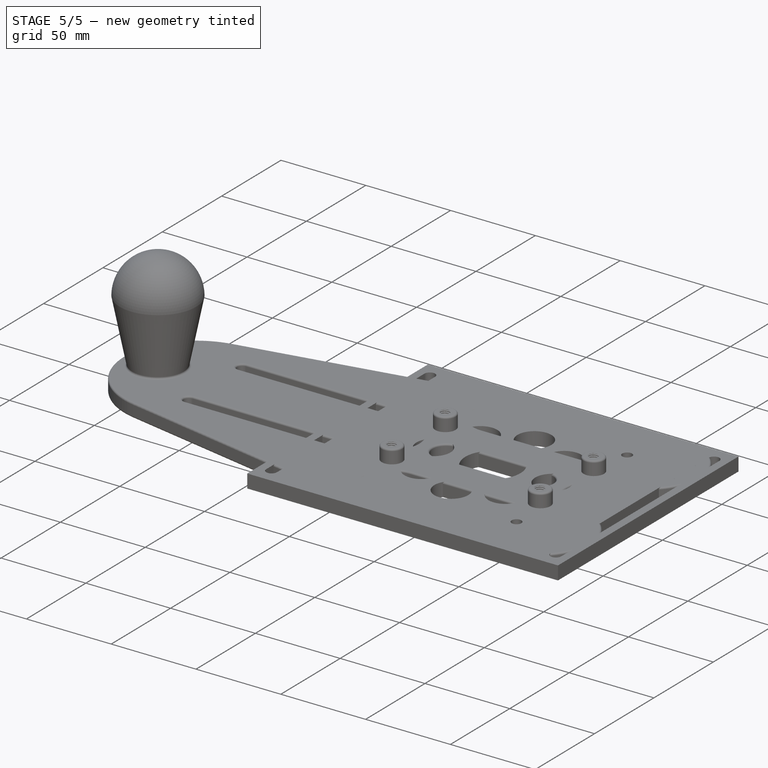
[diagram: stage 5 of 5 — iso view after this stage's code; geometry added in this stage tinted green]
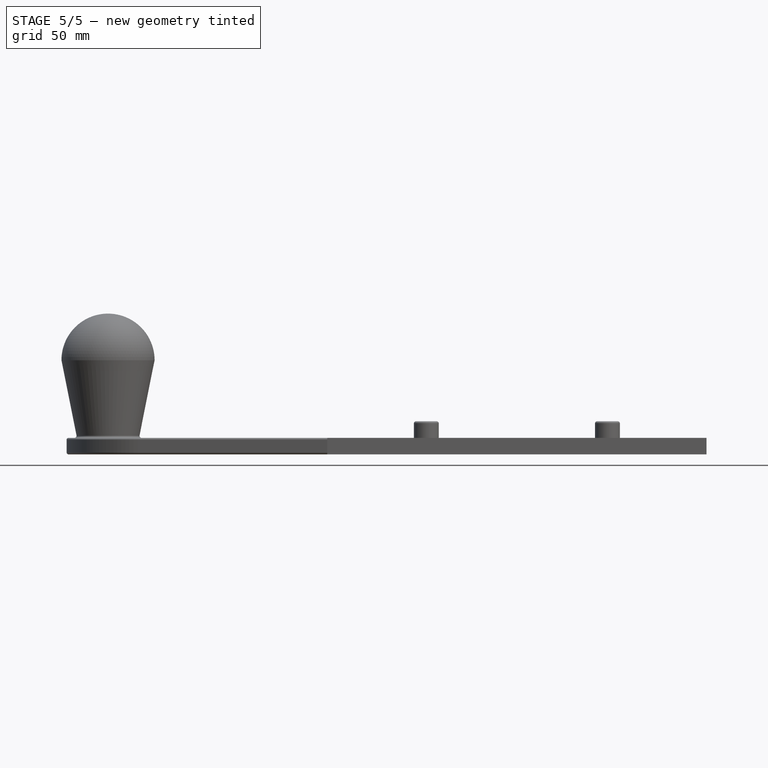
[diagram: stage 5 of 5 — front view after this stage's code; geometry added in this stage tinted green]
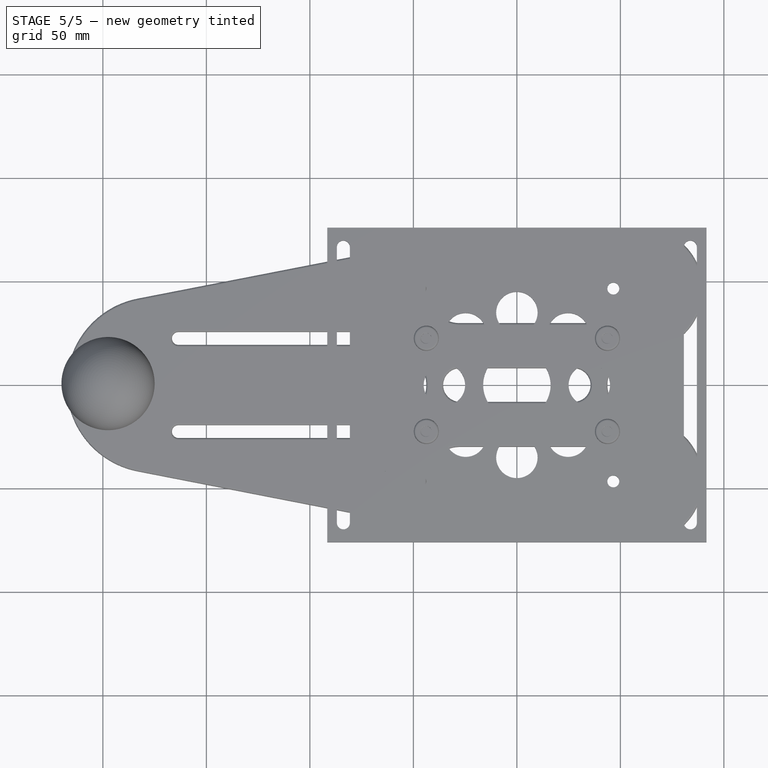
[diagram: stage 5 of 5 — top view after this stage's code; geometry added in this stage tinted green]
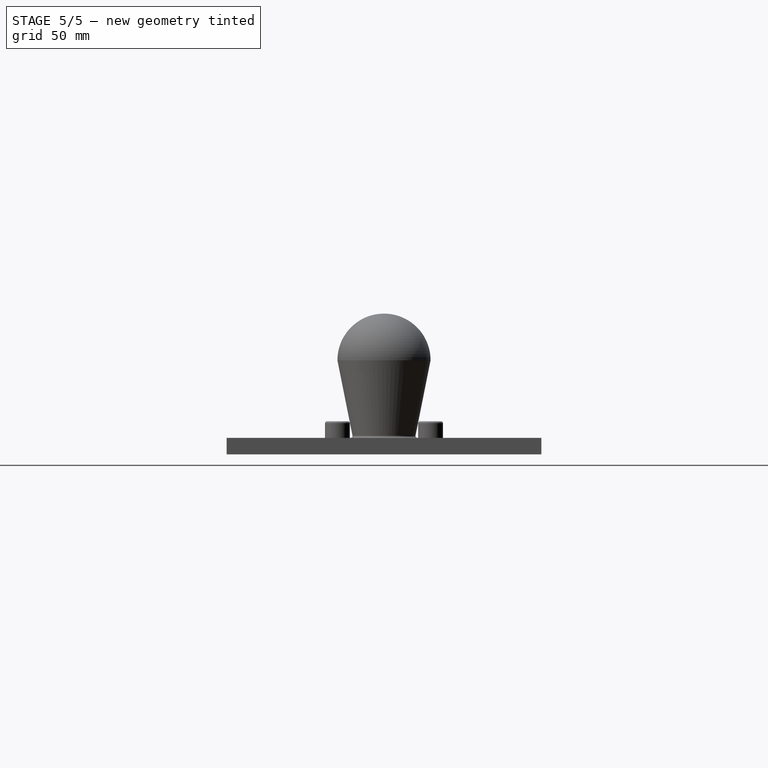
[diagram: stage 5 of 5 — right view after this stage's code; geometry added in this stage tinted green]
FEATURE [Sketcher::SketchObject] Sketch014
  ArcFitTolerance = 1e-06
  AttachmentSupport = -> [Pocket001]
  ExternalBSplineMaxDegree = 5
  ExternalBSplineTolerance = 0.0001
  FullyConstrained = true
  InternalTolerance = 1e-06
  InvalidShape = false
  MakeInternals = false
  MapMode = 5
  Placement = pos=(0,0,8) rot=(0,0,1;0rad)
  Support = -> [Pocket001]
  TreeRank = 60
  ValidateShape = true
  expr: Constraints[1] = <<Parameters>>.view_hole_diameter
  expr: Constraints[2] = <<Parameters>>.view_hole_offset
  sketch-geometry (1):
    g0: Circle CenterX=-35 CenterY=0 CenterZ=0 NormalX=0 NormalY=0 NormalZ=1 AngleXU=0 Radius=10
  constraints (3):
    c: PointOnObject(g0,g-1)
    c: Diameter(g0) = 20
    c: DistanceX(g0,g-1) = 35
FEATURE [PartDesign::Pocket] Pocket005
  AddSubType = 1
  AutoTaperInnerAngle = true
  BaseFeature = -> Pocket001
  CheckUpToFaceLimits = true
  ClaimChildren = false
  Fit = 0
  FitJoin = 0
  InnerFit = 0
  InnerFitJoin = 0
  InvalidShape = false
  Length = 8
  Length2 = 100
  Linearize = true
  NewSolid = false
  Profile = -> Sketch014
  Suppress = false
  TaperInnerAngle = 0
  TaperInnerAngleRev = 0
  TreeRank = 61
  Type = 0
  ValidateShape = true
  _ProfileBasedVersion = 1
  _Version = 1
  expr: Length = <<Parameters>>.thickness
FEATURE [PartDesign::PolarPattern] PolarPattern
  AddSubType = 0
  Angle = 360
  Axis = -> Z_Axis
  BaseFeature = -> Pocket005
  CopyShape = false
  InvalidShape = false
  NewSolid = false
  Occurrences = 8
  ParallelTransform = true
  SubTransform = true
  Suppress = false
  TreeRank = 62
  ValidateShape = true
  _Version = 3
  expr: Occurrences = <<Parameters>>.view_hole_count
FEATURE [PartDesign::PolarPattern] PolarPattern001
  AddSubType = 0
  Angle = 360
  Axis = -> Z_Axis001
  BaseFeature = -> Pocket006
  CopyShape = false
  InvalidShape = false
  NewSolid = false
  Occurrences = 8
  ParallelTransform = true
  SubTransform = true
  Suppress = false
  TreeRank = 64
  ValidateShape = true
  _Version = 3
  expr: Occurrences = <<Parameters>>.view_hole_count
FEATURE [PartDesign::Fillet] Fillet001
  AddSubType = 0
  Base = -> PolarPattern001 [Face5,Face4]
  BaseFeature = -> PolarPattern001
  InvalidShape = false
  NewSolid = false
  Radius = 1
  SupportTransform = false
  Suppress = false
  TreeRank = 65
  ValidateShape = true
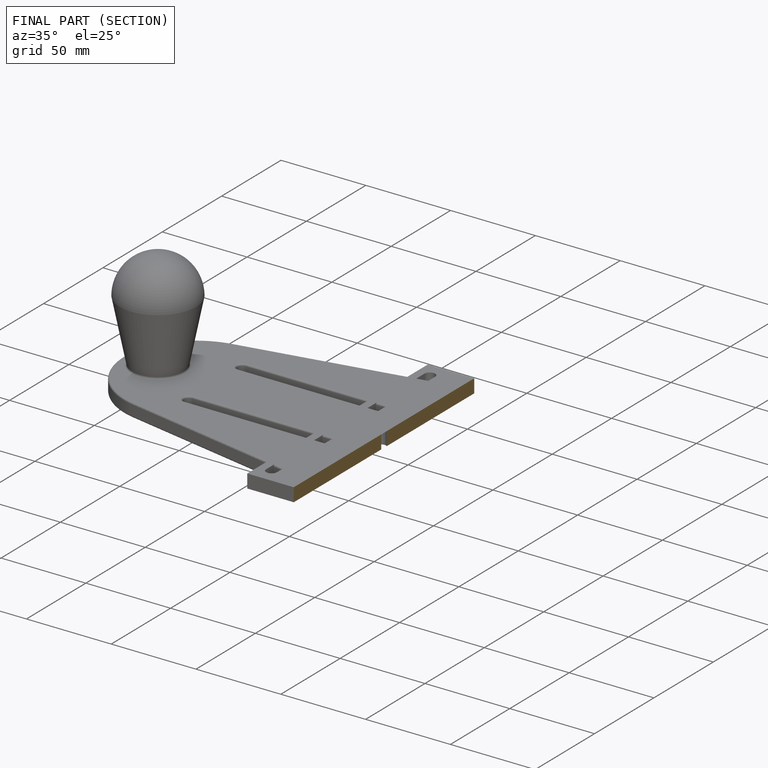
[diagram: finished part — half-section view (interior)]
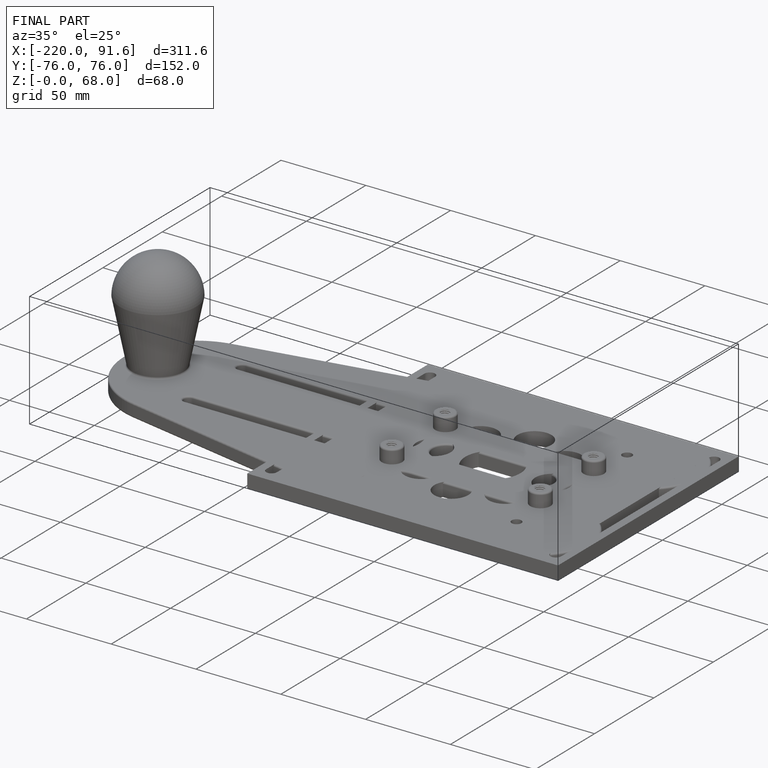
[diagram: finished part — iso view with bounding-box wireframe]
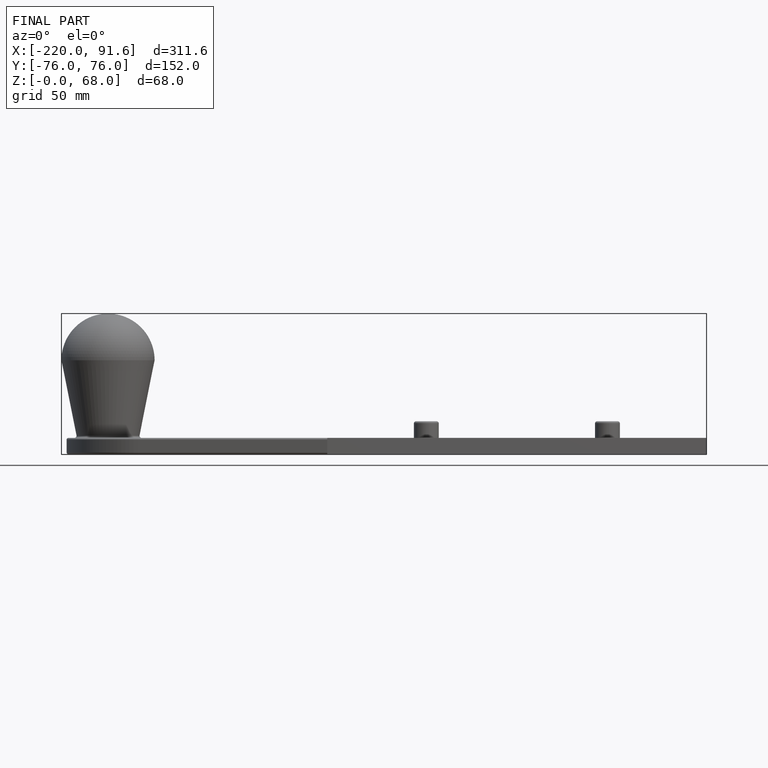
[diagram: finished part — front view with bounding-box wireframe]
